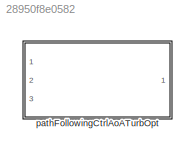
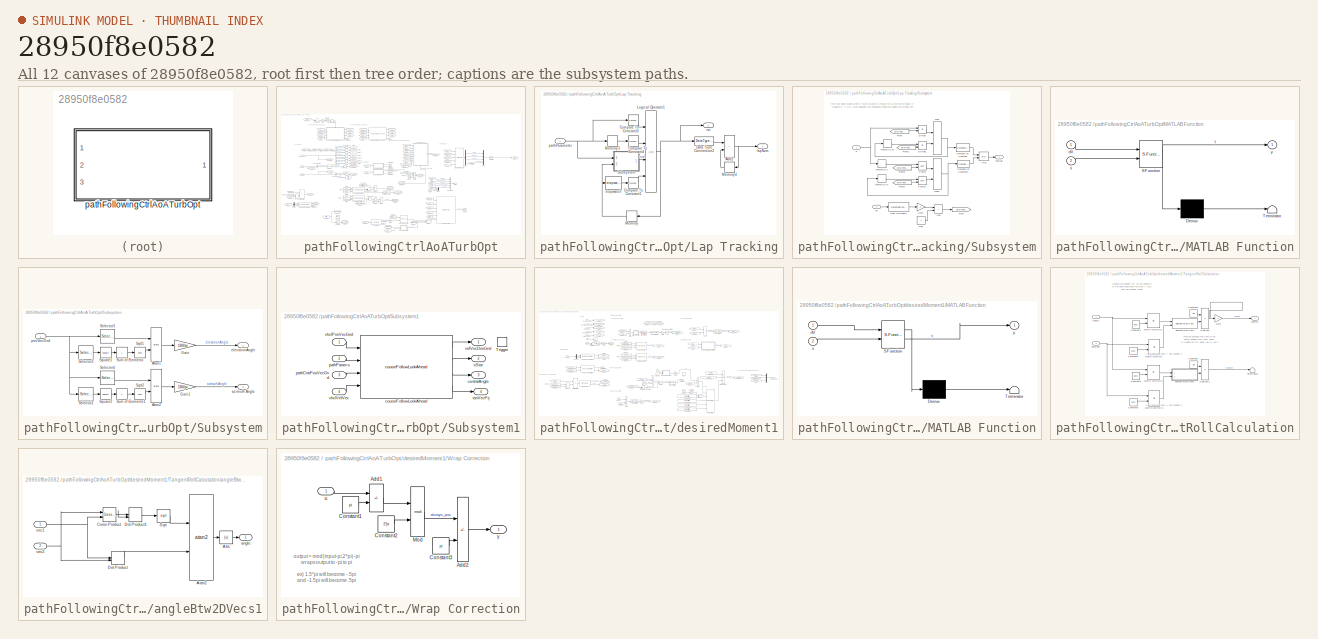
[diagram: thumbnail index - all 12 canvases of the model, root first then tree order]
MODEL slx_28950f8e0582
KIND library
CONFIG AbsTol = auto
CONFIG EnableMultiTasking = off
CONFIG FixedStep = auto
CONFIG MaxStep = auto
CONFIG MinStep = auto
CONFIG RelTol = 1e-3
CONFIG SampleTimeConstraint = Unconstrained
CONFIG SolverName = VariableStepAuto
CONFIG StartTime = 0.0
CONFIG StopTime = 10.0
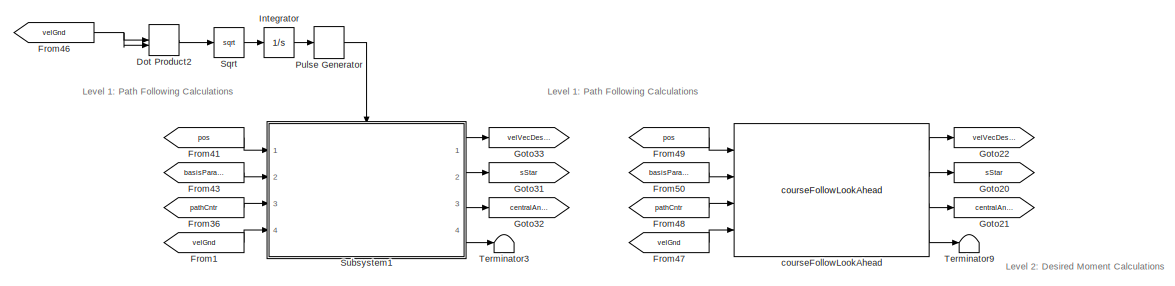
[diagram: pathFollowingCtrlAoATurbOpt - part 1/3, top left region]
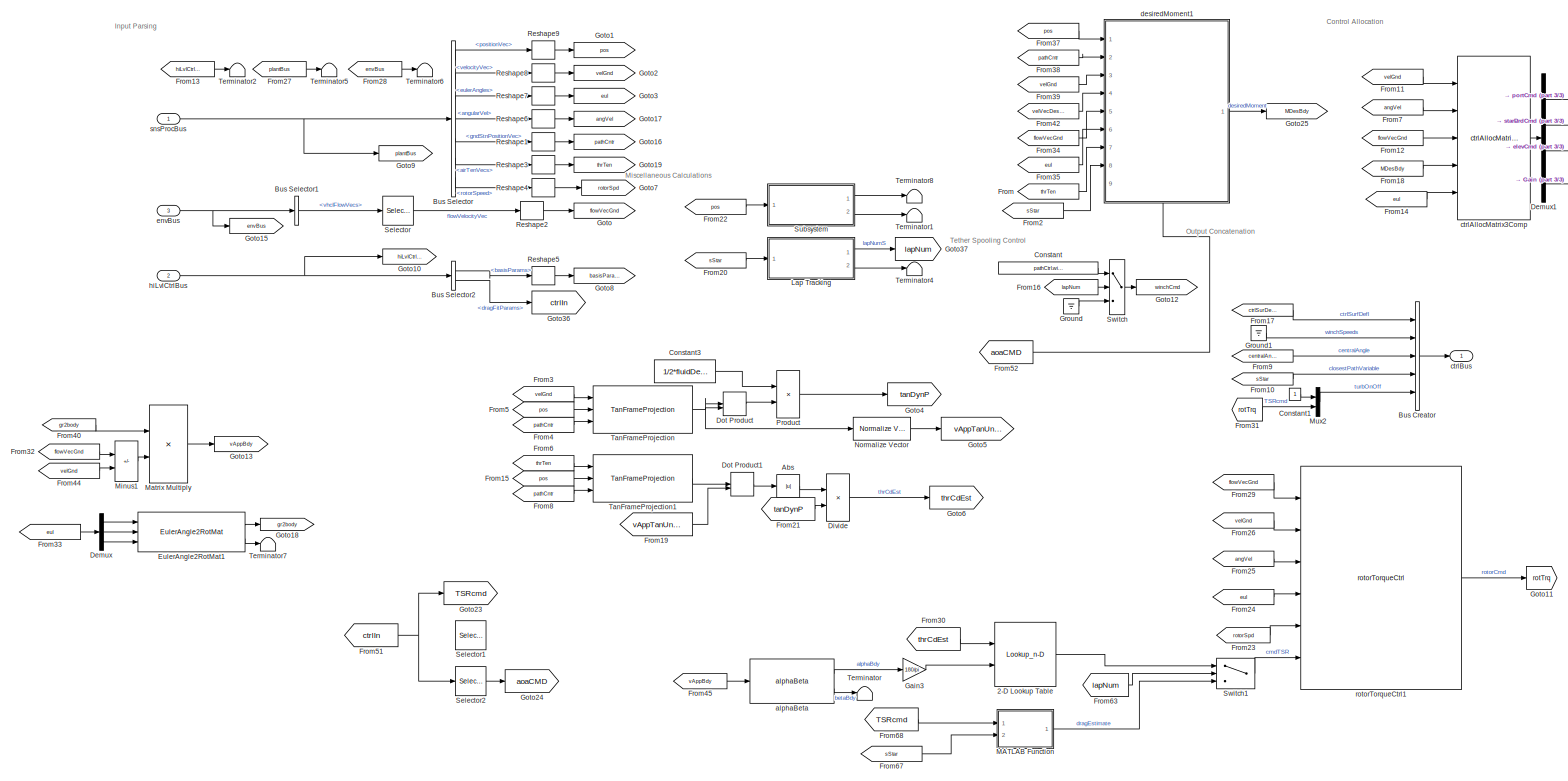
[diagram: pathFollowingCtrlAoATurbOpt - part 2/3, most of the canvas]
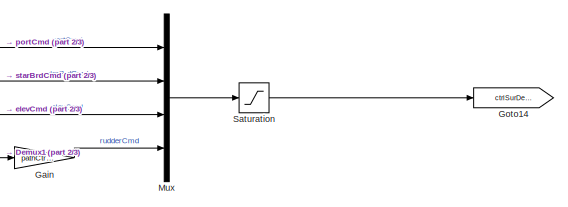
[diagram: pathFollowingCtrlAoATurbOpt - part 3/3, middle right region]
BLOCK [SubSystem] pathFollowingCtrlAoATurbOpt
  InitFcn = pathFollowingCtrlAoATurb_bc
  LoadFcn = pathFollowingCtrlAoATurb_bc
  MinAlgLoopOccurrences = on
  Ports = [3, 1]
  RequestExecContextInheritance = off
  StartFcn = pathFollowingCtrlAoATurb_bc
  VariantControl = strcmpi(FLIGHTCONTROLLER,'pathFollowingControllerManta')
BLOCK [Lookup_n-D] pathFollowingCtrlAoATurbOpt/2-D Lookup Table
  BreakpointsForDimension1 = thrCD
  BreakpointsForDimension2 = AoA
  InputPortMap = u0,u1
  InternalRulePriority = Speed
  Ports = [2, 1]
  RndMeth = Simplest
  Table = gammaDes
BLOCK [Abs] pathFollowingCtrlAoATurbOpt/Abs
  SaturateOnIntegerOverflow = off
BLOCK [BusCreator] pathFollowingCtrlAoATurbOpt/Bus Creator
  DisplayOption = bar
  InheritFromInputs = on
  Inputs = 5
  Ports = [5, 1]
BLOCK [BusSelector] pathFollowingCtrlAoATurbOpt/Bus Selector
  OutputSignals = positionVec,velocityVec,eulerAngles,angularVel,gndStnPositionVec,airTenVecs,rotorSpeed
  Ports = [1, 7]
BLOCK [BusSelector] pathFollowingCtrlAoATurbOpt/Bus Selector1
  OutputSignals = vhclFlowVecs
  Ports = [1, 1]
BLOCK [BusSelector] pathFollowingCtrlAoATurbOpt/Bus Selector2
  OutputSignals = basisParams,dragFitParams
  Ports = [1, 2]
BLOCK [Constant] pathFollowingCtrlAoATurbOpt/Constant
  Commented = on
  Value = pathCtrl.winchSpeedIn.Value
BLOCK [Constant] pathFollowingCtrlAoATurbOpt/Constant1
BLOCK [Constant] pathFollowingCtrlAoATurbOpt/Constant3
  Value = 1/2*fluidDensity*vhcl.fluidRefArea.Value
BLOCK [Demux] pathFollowingCtrlAoATurbOpt/Demux
  Outputs = 3
  Ports = [1, 3]
BLOCK [Demux] pathFollowingCtrlAoATurbOpt/Demux1
  Ports = [1, 4]
BLOCK [Product] pathFollowingCtrlAoATurbOpt/Divide
  Inputs = */
  Ports = [2, 1]
BLOCK [DotProduct] pathFollowingCtrlAoATurbOpt/Dot Product
  OutDataTypeStr = Inherit: Inherit via internal rule
BLOCK [DotProduct] pathFollowingCtrlAoATurbOpt/Dot Product1
  OutDataTypeStr = Inherit: Inherit via internal rule
BLOCK [DotProduct] pathFollowingCtrlAoATurbOpt/Dot Product2
  Commented = on
  OutDataTypeStr = Inherit: Inherit via internal rule
BLOCK [Reference] pathFollowingCtrlAoATurbOpt/EulerAngle2RotMat1  REF=eulAng2RotMat_ul/EulerAngle2RotMat
  Ports = [3, 2]
  SourceBlock = eulAng2RotMat_ul/EulerAngle2RotMat
  SourceType = SubSystem
BLOCK [From] pathFollowingCtrlAoATurbOpt/From
  GotoTag = thrTen
BLOCK [From] pathFollowingCtrlAoATurbOpt/From1
  Commented = on
  GotoTag = velGnd
BLOCK [From] pathFollowingCtrlAoATurbOpt/From10
  GotoTag = sStar
BLOCK [From] pathFollowingCtrlAoATurbOpt/From11
  GotoTag = velGnd
BLOCK [From] pathFollowingCtrlAoATurbOpt/From12
  GotoTag = flowVecGnd
BLOCK [From] pathFollowingCtrlAoATurbOpt/From13
  GotoTag = hiLvlCtrlBus
BLOCK [From] pathFollowingCtrlAoATurbOpt/From14
  GotoTag = eul
BLOCK [From] pathFollowingCtrlAoATurbOpt/From15
  GotoTag = pos
BLOCK [From] pathFollowingCtrlAoATurbOpt/From16
  Commented = on
  GotoTag = lapNum
BLOCK [From] pathFollowingCtrlAoATurbOpt/From17
  GotoTag = ctrlSurDefl
BLOCK [From] pathFollowingCtrlAoATurbOpt/From18
  GotoTag = MDesBdy
BLOCK [From] pathFollowingCtrlAoATurbOpt/From19
  GotoTag = vAppTanUnit
BLOCK [From] pathFollowingCtrlAoATurbOpt/From2
  GotoTag = sStar
BLOCK [From] pathFollowingCtrlAoATurbOpt/From20
  GotoTag = sStar
BLOCK [From] pathFollowingCtrlAoATurbOpt/From21
  GotoTag = tanDynP
BLOCK [From] pathFollowingCtrlAoATurbOpt/From22
  GotoTag = pos
BLOCK [From] pathFollowingCtrlAoATurbOpt/From23
  GotoTag = rotorSpd
BLOCK [From] pathFollowingCtrlAoATurbOpt/From24
  GotoTag = eul
BLOCK [From] pathFollowingCtrlAoATurbOpt/From25
  GotoTag = angVel
BLOCK [From] pathFollowingCtrlAoATurbOpt/From26
  GotoTag = velGnd
BLOCK [From] pathFollowingCtrlAoATurbOpt/From27
  GotoTag = plantBus
BLOCK [From] pathFollowingCtrlAoATurbOpt/From28
  GotoTag = envBus
BLOCK [From] pathFollowingCtrlAoATurbOpt/From29
  GotoTag = flowVecGnd
BLOCK [From] pathFollowingCtrlAoATurbOpt/From3
  GotoTag = velGnd
BLOCK [From] pathFollowingCtrlAoATurbOpt/From30
  GotoTag = thrCdEst
BLOCK [From] pathFollowingCtrlAoATurbOpt/From31
  GotoTag = rotTrq
BLOCK [From] pathFollowingCtrlAoATurbOpt/From32
  GotoTag = flowVecGnd
BLOCK [From] pathFollowingCtrlAoATurbOpt/From33
  GotoTag = eul
BLOCK [From] pathFollowingCtrlAoATurbOpt/From34
  GotoTag = flowVecGnd
BLOCK [From] pathFollowingCtrlAoATurbOpt/From35
  GotoTag = eul
BLOCK [From] pathFollowingCtrlAoATurbOpt/From36
  Commented = on
  GotoTag = pathCntr
BLOCK [From] pathFollowingCtrlAoATurbOpt/From37
  GotoTag = pos
BLOCK [From] pathFollowingCtrlAoATurbOpt/From38
  GotoTag = pathCntr
BLOCK [From] pathFollowingCtrlAoATurbOpt/From39
  GotoTag = velGnd
BLOCK [From] pathFollowingCtrlAoATurbOpt/From4
  GotoTag = pathCntr
BLOCK [From] pathFollowingCtrlAoATurbOpt/From40
  GotoTag = gr2body
BLOCK [From] pathFollowingCtrlAoATurbOpt/From41
  Commented = on
  GotoTag = pos
BLOCK [From] pathFollowingCtrlAoATurbOpt/From42
  GotoTag = velVecDesGnd
BLOCK [From] pathFollowingCtrlAoATurbOpt/From43
  Commented = on
  GotoTag = basisParams
BLOCK [From] pathFollowingCtrlAoATurbOpt/From44
  GotoTag = velGnd
BLOCK [From] pathFollowingCtrlAoATurbOpt/From45
  GotoTag = vAppBdy
BLOCK [From] pathFollowingCtrlAoATurbOpt/From46
  Commented = on
  GotoTag = velGnd
BLOCK [From] pathFollowingCtrlAoATurbOpt/From47
  GotoTag = velGnd
BLOCK [From] pathFollowingCtrlAoATurbOpt/From48
  GotoTag = pathCntr
BLOCK [From] pathFollowingCtrlAoATurbOpt/From49
  GotoTag = pos
BLOCK [From] pathFollowingCtrlAoATurbOpt/From5
  GotoTag = pos
BLOCK [From] pathFollowingCtrlAoATurbOpt/From50
  GotoTag = basisParams
BLOCK [From] pathFollowingCtrlAoATurbOpt/From51
  GotoTag = ctrlIn
BLOCK [From] pathFollowingCtrlAoATurbOpt/From52
  GotoTag = aoaCMD
BLOCK [From] pathFollowingCtrlAoATurbOpt/From6
  GotoTag = thrTen
BLOCK [From] pathFollowingCtrlAoATurbOpt/From63
  GotoTag = lapNum
BLOCK [From] pathFollowingCtrlAoATurbOpt/From67
  GotoTag = sStar
BLOCK [From] pathFollowingCtrlAoATurbOpt/From68
  GotoTag = TSRcmd
BLOCK [From] pathFollowingCtrlAoATurbOpt/From7
  GotoTag = angVel
BLOCK [From] pathFollowingCtrlAoATurbOpt/From8
  GotoTag = pathCntr
BLOCK [From] pathFollowingCtrlAoATurbOpt/From9
  GotoTag = centralAngle
BLOCK [Gain] pathFollowingCtrlAoATurbOpt/Gain
  Gain = pathCtrl.rudderGain.Value
BLOCK [Gain] pathFollowingCtrlAoATurbOpt/Gain3
  Gain = 180/pi
BLOCK [Goto] pathFollowingCtrlAoATurbOpt/Goto
  GotoTag = flowVecGnd
BLOCK [Goto] pathFollowingCtrlAoATurbOpt/Goto1
  GotoTag = pos
BLOCK [Goto] pathFollowingCtrlAoATurbOpt/Goto10
  GotoTag = hiLvlCtrlBus
BLOCK [Goto] pathFollowingCtrlAoATurbOpt/Goto11
  GotoTag = rotTrq
BLOCK [Goto] pathFollowingCtrlAoATurbOpt/Goto12
  Commented = on
  GotoTag = winchCmd
BLOCK [Goto] pathFollowingCtrlAoATurbOpt/Goto13
  GotoTag = vAppBdy
BLOCK [Goto] pathFollowingCtrlAoATurbOpt/Goto14
  GotoTag = ctrlSurDefl
BLOCK [Goto] pathFollowingCtrlAoATurbOpt/Goto15
  GotoTag = envBus
BLOCK [Goto] pathFollowingCtrlAoATurbOpt/Goto16
  GotoTag = pathCntr
BLOCK [Goto] pathFollowingCtrlAoATurbOpt/Goto17
  GotoTag = angVel
BLOCK [Goto] pathFollowingCtrlAoATurbOpt/Goto18
  GotoTag = gr2body
BLOCK [Goto] pathFollowingCtrlAoATurbOpt/Goto19
  GotoTag = thrTen
BLOCK [Goto] pathFollowingCtrlAoATurbOpt/Goto2
  GotoTag = velGnd
BLOCK [Goto] pathFollowingCtrlAoATurbOpt/Goto20
  GotoTag = sStar
BLOCK [Goto] pathFollowingCtrlAoATurbOpt/Goto21
  GotoTag = centralAngle
BLOCK [Goto] pathFollowingCtrlAoATurbOpt/Goto22
  GotoTag = velVecDesGnd
BLOCK [Goto] pathFollowingCtrlAoATurbOpt/Goto23
  GotoTag = TSRcmd
BLOCK [Goto] pathFollowingCtrlAoATurbOpt/Goto24
  Commented = on
  GotoTag = aoaCMD
BLOCK [Goto] pathFollowingCtrlAoATurbOpt/Goto25
  GotoTag = MDesBdy
BLOCK [Goto] pathFollowingCtrlAoATurbOpt/Goto3
  GotoTag = eul
BLOCK [Goto] pathFollowingCtrlAoATurbOpt/Goto31
  Commented = on
  GotoTag = sStar
BLOCK [Goto] pathFollowingCtrlAoATurbOpt/Goto32
  Commented = on
  GotoTag = centralAngle
BLOCK [Goto] pathFollowingCtrlAoATurbOpt/Goto33
  Commented = on
  GotoTag = velVecDesGnd
BLOCK [Goto] pathFollowingCtrlAoATurbOpt/Goto36
  GotoTag = ctrlIn
BLOCK [Goto] pathFollowingCtrlAoATurbOpt/Goto37
  GotoTag = lapNum
BLOCK [Goto] pathFollowingCtrlAoATurbOpt/Goto4
  GotoTag = tanDynP
BLOCK [Goto] pathFollowingCtrlAoATurbOpt/Goto5
  GotoTag = vAppTanUnit
BLOCK [Goto] pathFollowingCtrlAoATurbOpt/Goto6
  GotoTag = thrCdEst
BLOCK [Goto] pathFollowingCtrlAoATurbOpt/Goto7
  GotoTag = rotorSpd
BLOCK [Goto] pathFollowingCtrlAoATurbOpt/Goto8
  GotoTag = basisParams
BLOCK [Goto] pathFollowingCtrlAoATurbOpt/Goto9
  GotoTag = plantBus
BLOCK [Ground] pathFollowingCtrlAoATurbOpt/Ground
  Commented = on
BLOCK [Ground] pathFollowingCtrlAoATurbOpt/Ground1
BLOCK [Integrator] pathFollowingCtrlAoATurbOpt/Integrator
  Commented = on
  Ports = [1, 1]
BLOCK [SubSystem] pathFollowingCtrlAoATurbOpt/Lap Tracking
  Ports = [1, 2]
  RequestExecContextInheritance = off
BLOCK [Sum] pathFollowingCtrlAoATurbOpt/Lap Tracking/Add2
  IconShape = rectangular
  Ports = [2, 1]
BLOCK [Reference] pathFollowingCtrlAoATurbOpt/Lap Tracking/Compare To Constant1  REF=simulink/Logic and Bit
Operations/Compare
To Constant
  Ports = [1, 1]
  SourceBlock = simulink/Logic and Bit\nOperations/Compare\nTo Constant
  SourceProductBaseCode = SL
  SourceType = Compare To Constant
BLOCK [Reference] pathFollowingCtrlAoATurbOpt/Lap Tracking/Compare To Constant3  REF=simulink/Logic and Bit
Operations/Compare
To Constant
  Ports = [1, 1]
  SourceBlock = simulink/Logic and Bit\nOperations/Compare\nTo Constant
  SourceProductBaseCode = SL
  SourceType = Compare To Constant
BLOCK [Reference] pathFollowingCtrlAoATurbOpt/Lap Tracking/Compare To Constant4  REF=simulink/Logic and Bit
Operations/Compare
To Constant
  Ports = [1, 1]
  SourceBlock = simulink/Logic and Bit\nOperations/Compare\nTo Constant
  SourceProductBaseCode = SL
  SourceType = Compare To Constant
BLOCK [DataTypeConversion] pathFollowingCtrlAoATurbOpt/Lap Tracking/Data Type Conversion2
  OutDataTypeStr = double
  RndMeth = Floor
  SaturateOnIntegerOverflow = off
BLOCK [Logic] pathFollowingCtrlAoATurbOpt/Lap Tracking/Logical Operator1
  AllPortsSameDT = off
  Inputs = 4
  OutDataTypeStr = boolean
  Ports = [4, 1]
BLOCK [Memory] pathFollowingCtrlAoATurbOpt/Lap Tracking/Memory
  InitialCondition = false
BLOCK [Memory] pathFollowingCtrlAoATurbOpt/Lap Tracking/Memory3
BLOCK [Memory] pathFollowingCtrlAoATurbOpt/Lap Tracking/Memory4
BLOCK [SubSystem] pathFollowingCtrlAoATurbOpt/Lap Tracking/Subsystem
  Ports = [2, 1]
  RequestExecContextInheritance = off
BLOCK [Logic] pathFollowingCtrlAoATurbOpt/Lap Tracking/Subsystem/AND
  AllPortsSameDT = off
  OutDataTypeStr = boolean
  Ports = [2, 1]
BLOCK [Sum] pathFollowingCtrlAoATurbOpt/Lap Tracking/Subsystem/Add
  IconShape = rectangular
  Ports = [2, 1]
BLOCK [DataTypeConversion] pathFollowingCtrlAoATurbOpt/Lap Tracking/Subsystem/Cast To Double
  OutDataTypeStr = double
  RndMeth = Floor
  SaturateOnIntegerOverflow = off
BLOCK [Reference] pathFollowingCtrlAoATurbOpt/Lap Tracking/Subsystem/Compare To Constant  REF=simulink/Logic and Bit
Operations/Compare
To Constant
  Ports = [1, 1]
  SourceBlock = simulink/Logic and Bit\nOperations/Compare\nTo Constant
  SourceProductBaseCode = SL
  SourceType = Compare To Constant
BLOCK [Reference] pathFollowingCtrlAoATurbOpt/Lap Tracking/Subsystem/Compare To Constant1  REF=simulink/Logic and Bit
Operations/Compare
To Constant
  Ports = [1, 1]
  SourceBlock = simulink/Logic and Bit\nOperations/Compare\nTo Constant
  SourceProductBaseCode = SL
  SourceType = Compare To Constant
BLOCK [Product] pathFollowingCtrlAoATurbOpt/Lap Tracking/Subsystem/Divide
  Inputs = **
  Ports = [2, 1]
BLOCK [Product] pathFollowingCtrlAoATurbOpt/Lap Tracking/Subsystem/Divide1
  Inputs = **
  Ports = [2, 1]
BLOCK [From] pathFollowingCtrlAoATurbOpt/Lap Tracking/Subsystem/From
  GotoTag = zeroIfReset
BLOCK [From] pathFollowingCtrlAoATurbOpt/Lap Tracking/Subsystem/From1
  GotoTag = zeroIfReset
BLOCK [From] pathFollowingCtrlAoATurbOpt/Lap Tracking/Subsystem/From2
  GotoTag = zeroIfReset
BLOCK [From] pathFollowingCtrlAoATurbOpt/Lap Tracking/Subsystem/From3
  GotoTag = zeroIfReset
BLOCK [Gain] pathFollowingCtrlAoATurbOpt/Lap Tracking/Subsystem/Gain
  Gain = -1
BLOCK [Goto] pathFollowingCtrlAoATurbOpt/Lap Tracking/Subsystem/Goto
  GotoTag = zeroIfReset
BLOCK [MinMax] pathFollowingCtrlAoATurbOpt/Lap Tracking/Subsystem/Max
  Function = max
  Inputs = 2
  Ports = [2, 1]
BLOCK [MinMax] pathFollowingCtrlAoATurbOpt/Lap Tracking/Subsystem/Max1
  Inputs = 2
  Ports = [2, 1]
BLOCK [Constant] pathFollowingCtrlAoATurbOpt/Lap Tracking/Subsystem/One
  OutDataTypeStr = Inherit: Inherit via back propagation
BLOCK [Math] pathFollowingCtrlAoATurbOpt/Lap Tracking/Subsystem/Power
  Operator = pow
  Ports = [2, 1]
BLOCK [Math] pathFollowingCtrlAoATurbOpt/Lap Tracking/Subsystem/Power1
  Operator = pow
  Ports = [2, 1]
BLOCK [Inport] pathFollowingCtrlAoATurbOpt/Lap Tracking/Subsystem/S
BLOCK [Memory] pathFollowingCtrlAoATurbOpt/Lap Tracking/Subsystem/memoryIC1
  InitialCondition = 1
BLOCK [Memory] pathFollowingCtrlAoATurbOpt/Lap Tracking/Subsystem/memoryIC=0
BLOCK [Memory] pathFollowingCtrlAoATurbOpt/Lap Tracking/Subsystem/memoryIC=1
  InitialCondition = 1
BLOCK [Outport] pathFollowingCtrlAoATurbOpt/Lap Tracking/Subsystem/realLap
BLOCK [Inport] pathFollowingCtrlAoATurbOpt/Lap Tracking/Subsystem/rst
  Port = 2
BLOCK [Outport] pathFollowingCtrlAoATurbOpt/Lap Tracking/lapNum
  VectorParamsAs1DForOutWhenUnconnected = off
BLOCK [Inport] pathFollowingCtrlAoATurbOpt/Lap Tracking/pathParameter
BLOCK [Outport] pathFollowingCtrlAoATurbOpt/Lap Tracking/rst
  Port = 2
  VectorParamsAs1DForOutWhenUnconnected = off
BLOCK [Reference] pathFollowingCtrlAoATurbOpt/Lap Tracking/stopwatch  REF=stopwatch_ul/stopwatch  (lib defined in slx_5231e8830116, slx_6b86a6863970)
  Ports = [1, 1]
  SourceBlock = stopwatch_ul/stopwatch
  SourceType = SubSystem
BLOCK [SubSystem] pathFollowingCtrlAoATurbOpt/MATLAB Function
  ErrorFcn = Stateflow.Translate.translate
  PermitHierarchicalResolution = ExplicitOnly
  Ports = [2, 1]
  RequestExecContextInheritance = off
  SFBlockType = MATLAB Function
  TreatAsAtomicUnit = on
BLOCK [Demux] pathFollowingCtrlAoATurbOpt/MATLAB Function/ Demux 
  Outputs = 1
  Ports = [1, 1]
BLOCK [S-Function] pathFollowingCtrlAoATurbOpt/MATLAB Function/ SFunction 
  EnableBusSupport = off
  FunctionName = sf_sfun
  PortCounts = [2 2]
  Ports = [2, 2]
  SFcnIsStateOwnerBlock = off
  SFunctionDeploymentMode = off
  Tag = Stateflow S-Function 2
BLOCK [Terminator] pathFollowingCtrlAoATurbOpt/MATLAB Function/ Terminator 
BLOCK [Inport] pathFollowingCtrlAoATurbOpt/MATLAB Function/dV
BLOCK [Inport] pathFollowingCtrlAoATurbOpt/MATLAB Function/s
  Port = 2
BLOCK [Outport] pathFollowingCtrlAoATurbOpt/MATLAB Function/y
BLOCK [Product] pathFollowingCtrlAoATurbOpt/Matrix Multiply
  Multiplication = Matrix(*)
  Ports = [2, 1]
BLOCK [Sum] pathFollowingCtrlAoATurbOpt/Minus1
  IconShape = rectangular
  Inputs = +-
  Ports = [2, 1]
BLOCK [Mux] pathFollowingCtrlAoATurbOpt/Mux
  DisplayOption = bar
  Ports = [4, 1]
BLOCK [Mux] pathFollowingCtrlAoATurbOpt/Mux2
  DisplayOption = bar
  Inputs = 2
  Ports = [2, 1]
BLOCK [Reference] pathFollowingCtrlAoATurbOpt/Normalize Vector  REF=vrlib/Utilities/Normalize Vector
  Ports = [1, 1]
  SourceBlock = vrlib/Utilities/Normalize Vector
  SourceProductBaseCode = SL
  SourceType = Normalize Vector
BLOCK [Product] pathFollowingCtrlAoATurbOpt/Product
  Ports = [2, 1]
BLOCK [DiscretePulseGenerator] pathFollowingCtrlAoATurbOpt/Pulse Generator
  Commented = on
  Period = .01
  Ports = [1, 1]
  PulseType = Time based
  PulseWidth = 5
  TimeSource = Use external signal
BLOCK [Reshape] pathFollowingCtrlAoATurbOpt/Reshape1
  OutputDimensionality = Column vector (2-D)
  Ports = [1, 1]
BLOCK [Reshape] pathFollowingCtrlAoATurbOpt/Reshape2
  OutputDimensionality = Column vector (2-D)
  Ports = [1, 1]
BLOCK [Reshape] pathFollowingCtrlAoATurbOpt/Reshape3
  OutputDimensionality = Column vector (2-D)
  Ports = [1, 1]
BLOCK [Reshape] pathFollowingCtrlAoATurbOpt/Reshape4
  OutputDimensionality = Column vector (2-D)
  Ports = [1, 1]
BLOCK [Reshape] pathFollowingCtrlAoATurbOpt/Reshape5
  OutputDimensionality = Column vector (2-D)
  Ports = [1, 1]
BLOCK [Reshape] pathFollowingCtrlAoATurbOpt/Reshape6
  OutputDimensionality = Column vector (2-D)
  Ports = [1, 1]
BLOCK [Reshape] pathFollowingCtrlAoATurbOpt/Reshape7
  OutputDimensionality = Column vector (2-D)
  Ports = [1, 1]
BLOCK [Reshape] pathFollowingCtrlAoATurbOpt/Reshape8
  OutputDimensionality = Column vector (2-D)
  Ports = [1, 1]
BLOCK [Reshape] pathFollowingCtrlAoATurbOpt/Reshape9
  OutputDimensionality = Column vector (2-D)
  Ports = [1, 1]
BLOCK [Saturate] pathFollowingCtrlAoATurbOpt/Saturation
  LowerLimit = -30
  UpperLimit = 30
BLOCK [Selector] pathFollowingCtrlAoATurbOpt/Selector
  IndexOptions = Select all,Index vector (dialog)
  Indices = [1 3],5
  InputPortWidth = 3
  NumberOfDimensions = 2
  OutputSizes = 1,1
  Ports = [1, 1]
BLOCK [Selector] pathFollowingCtrlAoATurbOpt/Selector1
  Commented = on
  IndexOptions = Index vector (dialog)
  Indices = 1:10
  InputPortWidth = 20
  OutputSizes = 1
  Ports = [1, 1]
BLOCK [Selector] pathFollowingCtrlAoATurbOpt/Selector2
  Commented = on
  IndexOptions = Index vector (dialog)
  Indices = 11:20
  InputPortWidth = 20
  OutputSizes = 1
  Ports = [1, 1]
BLOCK [Sqrt] pathFollowingCtrlAoATurbOpt/Sqrt
  Commented = on
BLOCK [SubSystem] pathFollowingCtrlAoATurbOpt/Subsystem
  Ports = [1, 2]
  RequestExecContextInheritance = off
BLOCK [Trigonometry] pathFollowingCtrlAoATurbOpt/Subsystem/Atan1
  Operator = atan2
  Ports = [2, 1]
BLOCK [Trigonometry] pathFollowingCtrlAoATurbOpt/Subsystem/Atan2
  Operator = atan2
  Ports = [2, 1]
BLOCK [Gain] pathFollowingCtrlAoATurbOpt/Subsystem/Gain
  Gain = 180/pi
BLOCK [Gain] pathFollowingCtrlAoATurbOpt/Subsystem/Gain1
  Gain = 180/pi
BLOCK [Selector] pathFollowingCtrlAoATurbOpt/Subsystem/Selector1
  IndexOptions = Index vector (dialog)
  Indices = 1
  InputPortWidth = 3
  OutputSizes = 1
  Ports = [1, 1]
BLOCK [Selector] pathFollowingCtrlAoATurbOpt/Subsystem/Selector2
  IndexOptions = Index vector (dialog)
  Indices = [1 2]
  InputPortWidth = 3
  OutputSizes = 1
  Ports = [1, 1]
BLOCK [Selector] pathFollowingCtrlAoATurbOpt/Subsystem/Selector3
  IndexOptions = Index vector (dialog)
  Indices = 3
  InputPortWidth = 3
  OutputSizes = 1
  Ports = [1, 1]
BLOCK [Selector] pathFollowingCtrlAoATurbOpt/Subsystem/Selector4
  IndexOptions = Index vector (dialog)
  Indices = 2
  InputPortWidth = 3
  OutputSizes = 1
  Ports = [1, 1]
BLOCK [Sqrt] pathFollowingCtrlAoATurbOpt/Subsystem/Sqrt1
BLOCK [Sqrt] pathFollowingCtrlAoATurbOpt/Subsystem/Sqrt2
BLOCK [Math] pathFollowingCtrlAoATurbOpt/Subsystem/Square1
  Operator = square
  Ports = [1, 1]
  SignedPower = on
BLOCK [Math] pathFollowingCtrlAoATurbOpt/Subsystem/Square2
  Operator = square
  Ports = [1, 1]
  SignedPower = on
BLOCK [Sum] pathFollowingCtrlAoATurbOpt/Subsystem/Sum of Elements
  IconShape = rectangular
  Inputs = +
  Ports = [1, 1]
BLOCK [Sum] pathFollowingCtrlAoATurbOpt/Subsystem/Sum of Elements1
  IconShape = rectangular
  Inputs = +
  Ports = [1, 1]
BLOCK [Outport] pathFollowingCtrlAoATurbOpt/Subsystem/azimuth Angle
  Port = 2
BLOCK [Outport] pathFollowingCtrlAoATurbOpt/Subsystem/elevationAngle
BLOCK [Inport] pathFollowingCtrlAoATurbOpt/Subsystem/posVecGnd
BLOCK [SubSystem] pathFollowingCtrlAoATurbOpt/Subsystem1
  Commented = on
  Ports = [4, 4, 0, 1]
  RequestExecContextInheritance = off
BLOCK [TriggerPort] pathFollowingCtrlAoATurbOpt/Subsystem1/Trigger
  PortDimensions = 1
  Ports = []
  StatesWhenEnabling = held
  VariantControl = (inherit)
BLOCK [Outport] pathFollowingCtrlAoATurbOpt/Subsystem1/centralAngle
  Port = 3
BLOCK [Reference] pathFollowingCtrlAoATurbOpt/Subsystem1/courseFollowLookAhead  REF=courseFollowLookAhead_cl/courseFollowLookAhead
  Ports = [4, 4]
  SourceBlock = courseFollowLookAhead_cl/courseFollowLookAhead
  SourceType = SubSystem
BLOCK [Inport] pathFollowingCtrlAoATurbOpt/Subsystem1/pathCntrPosVecGnd
  Port = 3
BLOCK [Inport] pathFollowingCtrlAoATurbOpt/Subsystem1/pathParams
  Port = 2
BLOCK [Outport] pathFollowingCtrlAoATurbOpt/Subsystem1/sStar
  Port = 2
BLOCK [Outport] pathFollowingCtrlAoATurbOpt/Subsystem1/tanVecPrj
  Port = 4
BLOCK [Outport] pathFollowingCtrlAoATurbOpt/Subsystem1/velVecDesGnd
BLOCK [Inport] pathFollowingCtrlAoATurbOpt/Subsystem1/vhclPosVecGnd 
BLOCK [Inport] pathFollowingCtrlAoATurbOpt/Subsystem1/vhclVelVec
  Port = 4
BLOCK [Switch] pathFollowingCtrlAoATurbOpt/Switch
  Commented = on
  InputSameDT = off
  SaturateOnIntegerOverflow = off
  Threshold = fltCtrl.firstSpoolLap.Value
BLOCK [Switch] pathFollowingCtrlAoATurbOpt/Switch1
  Criteria = u2 > Threshold
  InputSameDT = off
  SaturateOnIntegerOverflow = off
  Threshold = laps2opt
BLOCK [Reference] pathFollowingCtrlAoATurbOpt/TanFrameProjection  REF=tanFrameProjection_ul/TanFrameProjection
  Ports = [3, 1]
  SourceBlock = tanFrameProjection_ul/TanFrameProjection
  SourceType = SubSystem
BLOCK [Reference] pathFollowingCtrlAoATurbOpt/TanFrameProjection1  REF=tanFrameProjection_ul/TanFrameProjection
  Ports = [3, 1]
  SourceBlock = tanFrameProjection_ul/TanFrameProjection
  SourceType = SubSystem
BLOCK [Terminator] pathFollowingCtrlAoATurbOpt/Terminator
BLOCK [Terminator] pathFollowingCtrlAoATurbOpt/Terminator1
BLOCK [Terminator] pathFollowingCtrlAoATurbOpt/Terminator2
BLOCK [Terminator] pathFollowingCtrlAoATurbOpt/Terminator3
  Commented = on
BLOCK [Terminator] pathFollowingCtrlAoATurbOpt/Terminator4
BLOCK [Terminator] pathFollowingCtrlAoATurbOpt/Terminator5
BLOCK [Terminator] pathFollowingCtrlAoATurbOpt/Terminator6
BLOCK [Terminator] pathFollowingCtrlAoATurbOpt/Terminator7
BLOCK [Terminator] pathFollowingCtrlAoATurbOpt/Terminator8
BLOCK [Terminator] pathFollowingCtrlAoATurbOpt/Terminator9
BLOCK [Reference] pathFollowingCtrlAoATurbOpt/alphaBeta  REF=alphaBeta_ul/alphaBeta
  Ports = [1, 2]
  SourceBlock = alphaBeta_ul/alphaBeta
  SourceType = SubSystem
BLOCK [Reference] pathFollowingCtrlAoATurbOpt/courseFollowLookAhead  REF=courseFollowLookAhead_cl/courseFollowLookAhead
  Ports = [4, 4]
  SourceBlock = courseFollowLookAhead_cl/courseFollowLookAhead
  SourceType = SubSystem
BLOCK [Reference] pathFollowingCtrlAoATurbOpt/ctrlAllocMatrix3Comp  REF=ctrlAllocMatrix3Comp_cl/ctrlAllocMatrix3Comp
  Ports = [5, 1]
  SourceBlock = ctrlAllocMatrix3Comp_cl/ctrlAllocMatrix3Comp
BLOCK [Outport] pathFollowingCtrlAoATurbOpt/ctrlBus
  OutDataTypeStr = Bus: fltCtrlBus
  VectorParamsAs1DForOutWhenUnconnected = off
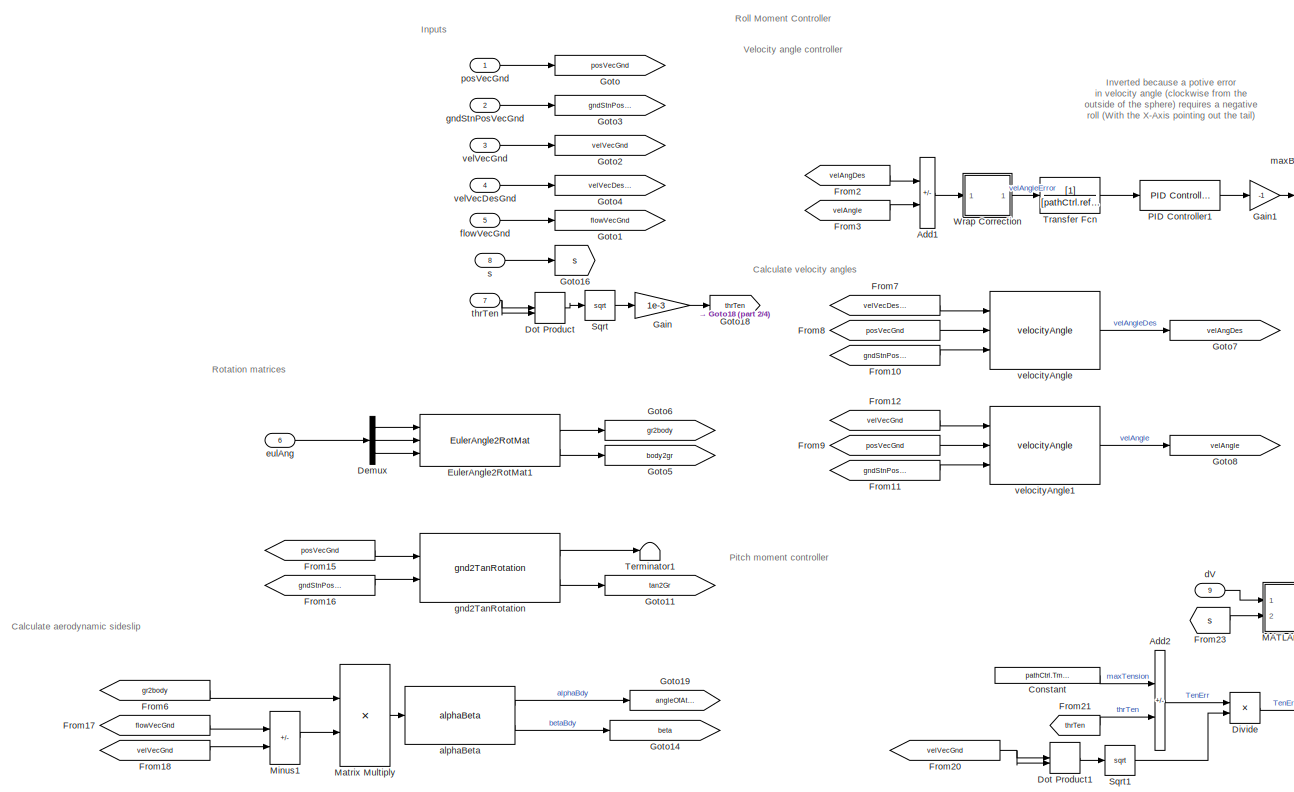
[diagram: pathFollowingCtrlAoATurbOpt/desiredMoment1 - part 1/4, left side, full height]
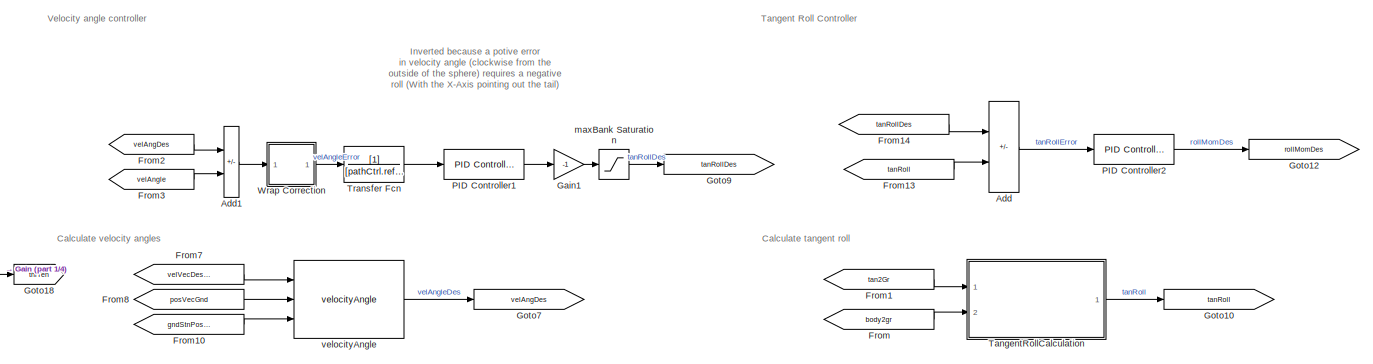
[diagram: pathFollowingCtrlAoATurbOpt/desiredMoment1 - part 2/4, top center region]
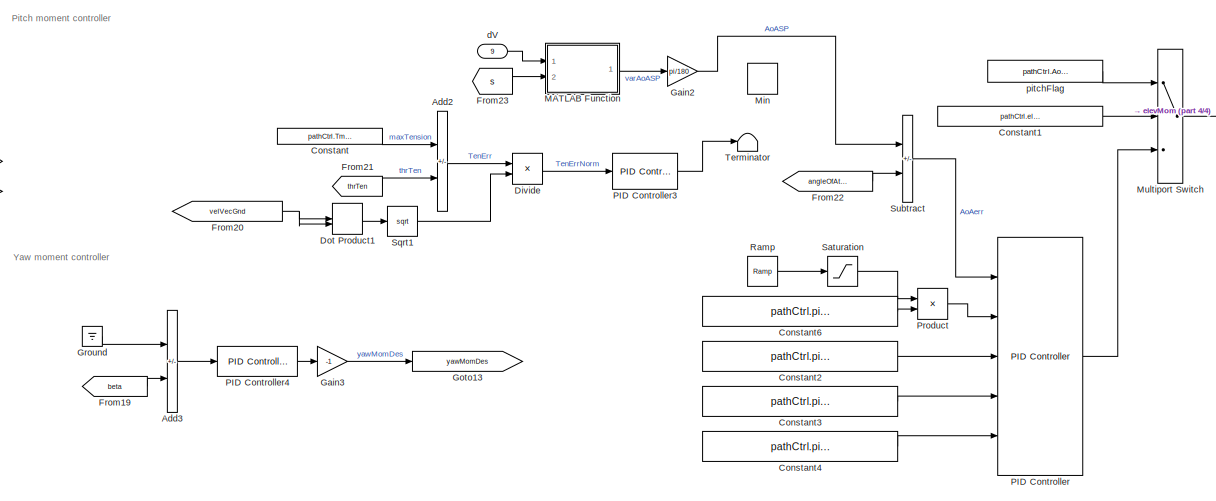
[diagram: pathFollowingCtrlAoATurbOpt/desiredMoment1 - part 3/4, bottom center region]
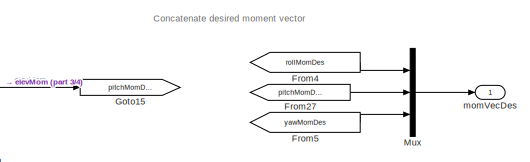
[diagram: pathFollowingCtrlAoATurbOpt/desiredMoment1 - part 4/4, middle right region]
BLOCK [SubSystem] pathFollowingCtrlAoATurbOpt/desiredMoment1
  PortSchema = {"entries":[{"content":{"sides":[{"content":{"connectorIds":["In1","In2","In3","In4","In5","In6","In7","In8"]},"type":"ConnectorPlacement.EquallySpacedRectSide","uuid":"01e16d0d-9328-4b4e-ac0f-d46a2051965f"},{"content":{"connectorIds":["Out1"],"side":"RIGHT"},"type":"ConnectorPlacement.EquallySpacedRectSide","uuid":"feeac069-ce6b-41d4-8056-59f0ed59b0cf"},{"content":{"connectorIds":[],"side":"TOP"}...<+431ch>
  Ports = [9, 1]
  RequestExecContextInheritance = off
BLOCK [Sum] pathFollowingCtrlAoATurbOpt/desiredMoment1/Add
  IconShape = rectangular
  Inputs = +-
  Ports = [2, 1]
BLOCK [Sum] pathFollowingCtrlAoATurbOpt/desiredMoment1/Add1
  IconShape = rectangular
  Inputs = +-
  Ports = [2, 1]
BLOCK [Sum] pathFollowingCtrlAoATurbOpt/desiredMoment1/Add2
  IconShape = rectangular
  Inputs = +-
  Ports = [2, 1]
BLOCK [Sum] pathFollowingCtrlAoATurbOpt/desiredMoment1/Add3
  IconShape = rectangular
  Inputs = +-
  Ports = [2, 1]
BLOCK [Constant] pathFollowingCtrlAoATurbOpt/desiredMoment1/Constant
  Value = pathCtrl.Tmax.Value
BLOCK [Constant] pathFollowingCtrlAoATurbOpt/desiredMoment1/Constant1
  Value = pathCtrl.elevatorConst.Value
BLOCK [Constant] pathFollowingCtrlAoATurbOpt/desiredMoment1/Constant2
  Value = pathCtrl.pitchMoment.ki.Value
BLOCK [Constant] pathFollowingCtrlAoATurbOpt/desiredMoment1/Constant3
  Value = pathCtrl.pitchMoment.kd.Value
BLOCK [Constant] pathFollowingCtrlAoATurbOpt/desiredMoment1/Constant4
  Value = pathCtrl.pitchMoment.tau.Value
BLOCK [Constant] pathFollowingCtrlAoATurbOpt/desiredMoment1/Constant6
  Value = pathCtrl.pitchMoment.kp.Value
BLOCK [Demux] pathFollowingCtrlAoATurbOpt/desiredMoment1/Demux
  Outputs = 3
  Ports = [1, 3]
BLOCK [Product] pathFollowingCtrlAoATurbOpt/desiredMoment1/Divide
  Inputs = */
  Ports = [2, 1]
BLOCK [DotProduct] pathFollowingCtrlAoATurbOpt/desiredMoment1/Dot Product
  OutDataTypeStr = Inherit: Inherit via internal rule
BLOCK [DotProduct] pathFollowingCtrlAoATurbOpt/desiredMoment1/Dot Product1
  OutDataTypeStr = Inherit: Inherit via internal rule
BLOCK [Reference] pathFollowingCtrlAoATurbOpt/desiredMoment1/EulerAngle2RotMat1  REF=eulAng2RotMat_ul/EulerAngle2RotMat
  Ports = [3, 2]
  SourceBlock = eulAng2RotMat_ul/EulerAngle2RotMat
  SourceType = SubSystem
BLOCK [From] pathFollowingCtrlAoATurbOpt/desiredMoment1/From
  GotoTag = body2gr
BLOCK [From] pathFollowingCtrlAoATurbOpt/desiredMoment1/From1
  GotoTag = tan2Gr
BLOCK [From] pathFollowingCtrlAoATurbOpt/desiredMoment1/From10
  GotoTag = gndStnPosVecGnd
BLOCK [From] pathFollowingCtrlAoATurbOpt/desiredMoment1/From11
  GotoTag = gndStnPosVecGnd
BLOCK [From] pathFollowingCtrlAoATurbOpt/desiredMoment1/From12
  GotoTag = velVecGnd
BLOCK [From] pathFollowingCtrlAoATurbOpt/desiredMoment1/From13
  GotoTag = tanRoll
BLOCK [From] pathFollowingCtrlAoATurbOpt/desiredMoment1/From14
  GotoTag = tanRollDes
BLOCK [From] pathFollowingCtrlAoATurbOpt/desiredMoment1/From15
  GotoTag = posVecGnd
BLOCK [From] pathFollowingCtrlAoATurbOpt/desiredMoment1/From16
  GotoTag = gndStnPosVecGnd
BLOCK [From] pathFollowingCtrlAoATurbOpt/desiredMoment1/From17
  GotoTag = flowVecGnd
BLOCK [From] pathFollowingCtrlAoATurbOpt/desiredMoment1/From18
  GotoTag = velVecGnd
BLOCK [From] pathFollowingCtrlAoATurbOpt/desiredMoment1/From19
  GotoTag = beta
BLOCK [From] pathFollowingCtrlAoATurbOpt/desiredMoment1/From2
  GotoTag = velAngDes
BLOCK [From] pathFollowingCtrlAoATurbOpt/desiredMoment1/From20
  GotoTag = velVecGnd
BLOCK [From] pathFollowingCtrlAoATurbOpt/desiredMoment1/From21
  GotoTag = thrTen
BLOCK [From] pathFollowingCtrlAoATurbOpt/desiredMoment1/From22
  GotoTag = angleOfAttack
BLOCK [From] pathFollowingCtrlAoATurbOpt/desiredMoment1/From23
  GotoTag = s
BLOCK [From] pathFollowingCtrlAoATurbOpt/desiredMoment1/From27
  GotoTag = pitchMomDes
BLOCK [From] pathFollowingCtrlAoATurbOpt/desiredMoment1/From3
  GotoTag = velAngle
BLOCK [From] pathFollowingCtrlAoATurbOpt/desiredMoment1/From4
  GotoTag = rollMomDes
BLOCK [From] pathFollowingCtrlAoATurbOpt/desiredMoment1/From5
  GotoTag = yawMomDes
BLOCK [From] pathFollowingCtrlAoATurbOpt/desiredMoment1/From6
  GotoTag = gr2body
BLOCK [From] pathFollowingCtrlAoATurbOpt/desiredMoment1/From7
  GotoTag = velVecDesGnd
BLOCK [From] pathFollowingCtrlAoATurbOpt/desiredMoment1/From8
  GotoTag = posVecGnd
BLOCK [From] pathFollowingCtrlAoATurbOpt/desiredMoment1/From9
  GotoTag = posVecGnd
BLOCK [Gain] pathFollowingCtrlAoATurbOpt/desiredMoment1/Gain
  Gain = 1e-3
BLOCK [Gain] pathFollowingCtrlAoATurbOpt/desiredMoment1/Gain1
  Gain = -1
BLOCK [Gain] pathFollowingCtrlAoATurbOpt/desiredMoment1/Gain2
  Gain = pi/180
BLOCK [Gain] pathFollowingCtrlAoATurbOpt/desiredMoment1/Gain3
  Gain = -1
BLOCK [Goto] pathFollowingCtrlAoATurbOpt/desiredMoment1/Goto
  GotoTag = posVecGnd
BLOCK [Goto] pathFollowingCtrlAoATurbOpt/desiredMoment1/Goto1
  GotoTag = flowVecGnd
BLOCK [Goto] pathFollowingCtrlAoATurbOpt/desiredMoment1/Goto10
  GotoTag = tanRoll
BLOCK [Goto] pathFollowingCtrlAoATurbOpt/desiredMoment1/Goto11
  GotoTag = tan2Gr
BLOCK [Goto] pathFollowingCtrlAoATurbOpt/desiredMoment1/Goto12
  GotoTag = rollMomDes
BLOCK [Goto] pathFollowingCtrlAoATurbOpt/desiredMoment1/Goto13
  GotoTag = yawMomDes
BLOCK [Goto] pathFollowingCtrlAoATurbOpt/desiredMoment1/Goto14
  GotoTag = beta
BLOCK [Goto] pathFollowingCtrlAoATurbOpt/desiredMoment1/Goto15
  GotoTag = pitchMomDes
BLOCK [Goto] pathFollowingCtrlAoATurbOpt/desiredMoment1/Goto16
  GotoTag = s
BLOCK [Goto] pathFollowingCtrlAoATurbOpt/desiredMoment1/Goto18
  GotoTag = thrTen
BLOCK [Goto] pathFollowingCtrlAoATurbOpt/desiredMoment1/Goto19
  GotoTag = angleOfAttack
BLOCK [Goto] pathFollowingCtrlAoATurbOpt/desiredMoment1/Goto2
  GotoTag = velVecGnd
BLOCK [Goto] pathFollowingCtrlAoATurbOpt/desiredMoment1/Goto3
  GotoTag = gndStnPosVecGnd
BLOCK [Goto] pathFollowingCtrlAoATurbOpt/desiredMoment1/Goto4
  GotoTag = velVecDesGnd
BLOCK [Goto] pathFollowingCtrlAoATurbOpt/desiredMoment1/Goto5
  GotoTag = body2gr
BLOCK [Goto] pathFollowingCtrlAoATurbOpt/desiredMoment1/Goto6
  GotoTag = gr2body
BLOCK [Goto] pathFollowingCtrlAoATurbOpt/desiredMoment1/Goto7
  GotoTag = velAngDes
BLOCK [Goto] pathFollowingCtrlAoATurbOpt/desiredMoment1/Goto8
  GotoTag = velAngle
BLOCK [Goto] pathFollowingCtrlAoATurbOpt/desiredMoment1/Goto9
  GotoTag = tanRollDes
BLOCK [Ground] pathFollowingCtrlAoATurbOpt/desiredMoment1/Ground
BLOCK [SubSystem] pathFollowingCtrlAoATurbOpt/desiredMoment1/MATLAB Function
  ErrorFcn = Stateflow.Translate.translate
  PermitHierarchicalResolution = ExplicitOnly
  Ports = [2, 1]
  RequestExecContextInheritance = off
  SFBlockType = MATLAB Function
  TreatAsAtomicUnit = on
BLOCK [Demux] pathFollowingCtrlAoATurbOpt/desiredMoment1/MATLAB Function/ Demux 
  Outputs = 1
  Ports = [1, 1]
BLOCK [S-Function] pathFollowingCtrlAoATurbOpt/desiredMoment1/MATLAB Function/ SFunction 
  EnableBusSupport = off
  FunctionName = sf_sfun
  PortCounts = [2 2]
  Ports = [2, 2]
  SFcnIsStateOwnerBlock = off
  SFunctionDeploymentMode = off
  Tag = Stateflow S-Function 1
BLOCK [Terminator] pathFollowingCtrlAoATurbOpt/desiredMoment1/MATLAB Function/ Terminator 
BLOCK [Inport] pathFollowingCtrlAoATurbOpt/desiredMoment1/MATLAB Function/dV
BLOCK [Inport] pathFollowingCtrlAoATurbOpt/desiredMoment1/MATLAB Function/s
  Port = 2
BLOCK [Outport] pathFollowingCtrlAoATurbOpt/desiredMoment1/MATLAB Function/y
BLOCK [Product] pathFollowingCtrlAoATurbOpt/desiredMoment1/Matrix Multiply
  Multiplication = Matrix(*)
  Ports = [2, 1]
BLOCK [MinMax] pathFollowingCtrlAoATurbOpt/desiredMoment1/Min
  Commented = on
  Inputs = 2
  Ports = [2, 1]
BLOCK [Sum] pathFollowingCtrlAoATurbOpt/desiredMoment1/Minus1
  IconShape = rectangular
  Inputs = +-
  Ports = [2, 1]
BLOCK [MultiPortSwitch] pathFollowingCtrlAoATurbOpt/desiredMoment1/Multiport Switch
  DataPortIndices = {0,1}
  DataPortOrder = Specify indices
  InputSameDT = off
  Inputs = 2
  Ports = [3, 1]
  SaturateOnIntegerOverflow = off
BLOCK [Mux] pathFollowingCtrlAoATurbOpt/desiredMoment1/Mux
  DisplayOption = bar
  Inputs = 3
  Ports = [3, 1]
BLOCK [Reference] pathFollowingCtrlAoATurbOpt/desiredMoment1/PID Controller  REF=slpidlib/PID Controller
  Ports = [5, 1]
  SourceBlock = slpidlib/PID Controller
  SourceProductBaseCode = SL
  SourceType = PID 1dof
BLOCK [Reference] pathFollowingCtrlAoATurbOpt/desiredMoment1/PID Controller1  REF=slpidlib/PID Controller
  Ports = [1, 1]
  SourceBlock = slpidlib/PID Controller
  SourceProductBaseCode = SL
  SourceType = PID 1dof
BLOCK [Reference] pathFollowingCtrlAoATurbOpt/desiredMoment1/PID Controller2  REF=slpidlib/PID Controller
  Ports = [1, 1]
  SourceBlock = slpidlib/PID Controller
  SourceProductBaseCode = SL
  SourceType = PID 1dof
BLOCK [Reference] pathFollowingCtrlAoATurbOpt/desiredMoment1/PID Controller3  REF=slpidlib/PID Controller
  Ports = [1, 1]
  SourceBlock = slpidlib/PID Controller
  SourceProductBaseCode = SL
  SourceType = PID 1dof
BLOCK [Reference] pathFollowingCtrlAoATurbOpt/desiredMoment1/PID Controller4  REF=slpidlib/PID Controller
  Ports = [1, 1]
  SourceBlock = slpidlib/PID Controller
  SourceProductBaseCode = SL
  SourceType = PID 1dof
BLOCK [Product] pathFollowingCtrlAoATurbOpt/desiredMoment1/Product
  Ports = [2, 1]
BLOCK [Reference] pathFollowingCtrlAoATurbOpt/desiredMoment1/Ramp  REF=simulink/Sources/Ramp
  Ports = [0, 1]
  SourceBlock = simulink/Sources/Ramp
  SourceProductBaseCode = SL
  SourceType = Ramp
BLOCK [Saturate] pathFollowingCtrlAoATurbOpt/desiredMoment1/Saturation
  LowerLimit = 0.2
  UpperLimit = 1
BLOCK [Sqrt] pathFollowingCtrlAoATurbOpt/desiredMoment1/Sqrt
BLOCK [Sqrt] pathFollowingCtrlAoATurbOpt/desiredMoment1/Sqrt1
BLOCK [Sum] pathFollowingCtrlAoATurbOpt/desiredMoment1/Subtract
  IconShape = rectangular
  Inputs = +-
  Ports = [2, 1]
BLOCK [SubSystem] pathFollowingCtrlAoATurbOpt/desiredMoment1/TangentRollCalculation
  Ports = [2, 1]
  RequestExecContextInheritance = off
BLOCK [Constant] pathFollowingCtrlAoATurbOpt/desiredMoment1/TangentRollCalculation/Constant1
  Value = pi/2
BLOCK [Constant] pathFollowingCtrlAoATurbOpt/desiredMoment1/TangentRollCalculation/Constant2
  Value = pi/2
BLOCK [Constant] pathFollowingCtrlAoATurbOpt/desiredMoment1/TangentRollCalculation/Constant3
  Value = [0 1 0]'
BLOCK [Constant] pathFollowingCtrlAoATurbOpt/desiredMoment1/TangentRollCalculation/Constant4
  Value = [0 0 1]'
BLOCK [Constant] pathFollowingCtrlAoATurbOpt/desiredMoment1/TangentRollCalculation/Constant5
  Value = [1 0 0]'
BLOCK [Constant] pathFollowingCtrlAoATurbOpt/desiredMoment1/TangentRollCalculation/Constant6
  Value = [0 0 1]'
BLOCK [Gain] pathFollowingCtrlAoATurbOpt/desiredMoment1/TangentRollCalculation/Gain
  Gain = -1
BLOCK [Product] pathFollowingCtrlAoATurbOpt/desiredMoment1/TangentRollCalculation/Matrix Multiply
  Multiplication = Matrix(*)
  Ports = [2, 1]
BLOCK [Product] pathFollowingCtrlAoATurbOpt/desiredMoment1/TangentRollCalculation/Matrix Multiply1
  Multiplication = Matrix(*)
  Ports = [2, 1]
BLOCK [Product] pathFollowingCtrlAoATurbOpt/desiredMoment1/TangentRollCalculation/Matrix Multiply2
  Multiplication = Matrix(*)
  Ports = [2, 1]
BLOCK [Product] pathFollowingCtrlAoATurbOpt/desiredMoment1/TangentRollCalculation/Matrix Multiply3
  Multiplication = Matrix(*)
  Ports = [2, 1]
BLOCK [Sum] pathFollowingCtrlAoATurbOpt/desiredMoment1/TangentRollCalculation/Subtract
  IconShape = rectangular
  Inputs = +-
  Ports = [2, 1]
BLOCK [Sum] pathFollowingCtrlAoATurbOpt/desiredMoment1/TangentRollCalculation/Subtract1
  IconShape = rectangular
  Inputs = +-
  Ports = [2, 1]
BLOCK [Terminator] pathFollowingCtrlAoATurbOpt/desiredMoment1/TangentRollCalculation/Terminator
BLOCK [Reference] pathFollowingCtrlAoATurbOpt/desiredMoment1/TangentRollCalculation/angleBtw2DVecs  REF=angleBtw2Vecs_ul/angleBtw2DVecs
  Ports = [2, 1]
  SourceBlock = angleBtw2Vecs_ul/angleBtw2DVecs
  SourceType = SubSystem
BLOCK [SubSystem] pathFollowingCtrlAoATurbOpt/desiredMoment1/TangentRollCalculation/angleBtw2DVecs1
  Ports = [2, 1]
  RequestExecContextInheritance = off
BLOCK [Abs] pathFollowingCtrlAoATurbOpt/desiredMoment1/TangentRollCalculation/angleBtw2DVecs1/Abs
  SaturateOnIntegerOverflow = off
BLOCK [Trigonometry] pathFollowingCtrlAoATurbOpt/desiredMoment1/TangentRollCalculation/angleBtw2DVecs1/Atan2
  Operator = atan2
  Ports = [2, 1]
BLOCK [Reference] pathFollowingCtrlAoATurbOpt/desiredMoment1/TangentRollCalculation/angleBtw2DVecs1/Cross Product  REF=vrlib/Utilities/Cross Product
  Ports = [2, 1]
  SourceBlock = vrlib/Utilities/Cross Product
  SourceProductBaseCode = SL
  SourceType = Cross Product
BLOCK [DotProduct] pathFollowingCtrlAoATurbOpt/desiredMoment1/TangentRollCalculation/angleBtw2DVecs1/Dot Product
  OutDataTypeStr = Inherit: Inherit via internal rule
BLOCK [DotProduct] pathFollowingCtrlAoATurbOpt/desiredMoment1/TangentRollCalculation/angleBtw2DVecs1/Dot Product1
  OutDataTypeStr = Inherit: Inherit via internal rule
BLOCK [Sqrt] pathFollowingCtrlAoATurbOpt/desiredMoment1/TangentRollCalculation/angleBtw2DVecs1/Sqrt
BLOCK [Outport] pathFollowingCtrlAoATurbOpt/desiredMoment1/TangentRollCalculation/angleBtw2DVecs1/angle
  VectorParamsAs1DForOutWhenUnconnected = off
BLOCK [Inport] pathFollowingCtrlAoATurbOpt/desiredMoment1/TangentRollCalculation/angleBtw2DVecs1/vec1
BLOCK [Inport] pathFollowingCtrlAoATurbOpt/desiredMoment1/TangentRollCalculation/angleBtw2DVecs1/vec2
  Port = 2
BLOCK [Inport] pathFollowingCtrlAoATurbOpt/desiredMoment1/TangentRollCalculation/bdy2Inert
  Port = 2
BLOCK [Inport] pathFollowingCtrlAoATurbOpt/desiredMoment1/TangentRollCalculation/tan2Gr
BLOCK [Outport] pathFollowingCtrlAoATurbOpt/desiredMoment1/TangentRollCalculation/tanRoll
  VectorParamsAs1DForOutWhenUnconnected = off
BLOCK [Terminator] pathFollowingCtrlAoATurbOpt/desiredMoment1/Terminator
BLOCK [Terminator] pathFollowingCtrlAoATurbOpt/desiredMoment1/Terminator1
BLOCK [TransferFcn] pathFollowingCtrlAoATurbOpt/desiredMoment1/Transfer Fcn
  Denominator = [pathCtrl.refFiltTau.Value 1]
BLOCK [SubSystem] pathFollowingCtrlAoATurbOpt/desiredMoment1/Wrap Correction
  Ports = [1, 1]
  RequestExecContextInheritance = off
BLOCK [Sum] pathFollowingCtrlAoATurbOpt/desiredMoment1/Wrap Correction/Add1
  IconShape = rectangular
  Inputs = +-
  Ports = [2, 1]
BLOCK [Sum] pathFollowingCtrlAoATurbOpt/desiredMoment1/Wrap Correction/Add2
  IconShape = rectangular
  Inputs = +-
  Ports = [2, 1]
BLOCK [Constant] pathFollowingCtrlAoATurbOpt/desiredMoment1/Wrap Correction/Constant1
  Value = pi
BLOCK [Constant] pathFollowingCtrlAoATurbOpt/desiredMoment1/Wrap Correction/Constant2
  Value = 2*pi
BLOCK [Constant] pathFollowingCtrlAoATurbOpt/desiredMoment1/Wrap Correction/Constant3
  Value = pi
BLOCK [Math] pathFollowingCtrlAoATurbOpt/desiredMoment1/Wrap Correction/Mod
  Operator = mod
  Ports = [2, 1]
  SignedPower = on
BLOCK [Inport] pathFollowingCtrlAoATurbOpt/desiredMoment1/Wrap Correction/u
BLOCK [Outport] pathFollowingCtrlAoATurbOpt/desiredMoment1/Wrap Correction/y
  VectorParamsAs1DForOutWhenUnconnected = off
BLOCK [Reference] pathFollowingCtrlAoATurbOpt/desiredMoment1/alphaBeta  REF=alphaBeta_ul/alphaBeta
  Ports = [1, 2]
  SourceBlock = alphaBeta_ul/alphaBeta
  SourceType = SubSystem
BLOCK [Inport] pathFollowingCtrlAoATurbOpt/desiredMoment1/dV
  Port = 9
BLOCK [Inport] pathFollowingCtrlAoATurbOpt/desiredMoment1/eulAng
  Port = 6
BLOCK [Inport] pathFollowingCtrlAoATurbOpt/desiredMoment1/flowVecGnd
  Port = 5
BLOCK [Reference] pathFollowingCtrlAoATurbOpt/desiredMoment1/gnd2TanRotation  REF=gnd2TanRotation_ul/gnd2TanRotation
  Ports = [2, 2]
  SourceBlock = gnd2TanRotation_ul/gnd2TanRotation
  SourceType = SubSystem
BLOCK [Inport] pathFollowingCtrlAoATurbOpt/desiredMoment1/gndStnPosVecGnd
  Port = 2
BLOCK [Saturate] pathFollowingCtrlAoATurbOpt/desiredMoment1/maxBank Saturation
  LowerLimit = pathCtrl.maxBank.lowerLimit.Value
  UpperLimit = pathCtrl.maxBank.upperLimit.Value
BLOCK [Outport] pathFollowingCtrlAoATurbOpt/desiredMoment1/momVecDes
  VectorParamsAs1DForOutWhenUnconnected = off
BLOCK [Constant] pathFollowingCtrlAoATurbOpt/desiredMoment1/pitchFlag
  Value = pathCtrl.AoACtrl.Value
BLOCK [Inport] pathFollowingCtrlAoATurbOpt/desiredMoment1/posVecGnd
BLOCK [Inport] pathFollowingCtrlAoATurbOpt/desiredMoment1/s
  Port = 8
BLOCK [Inport] pathFollowingCtrlAoATurbOpt/desiredMoment1/thrTen
  Port = 7
BLOCK [Inport] pathFollowingCtrlAoATurbOpt/desiredMoment1/velVecDesGnd
  Port = 4
BLOCK [Inport] pathFollowingCtrlAoATurbOpt/desiredMoment1/velVecGnd
  Port = 3
BLOCK [Reference] pathFollowingCtrlAoATurbOpt/desiredMoment1/velocityAngle  REF=velocityAngle_ul/velocityAngle
  Ports = [3, 1]
  SourceBlock = velocityAngle_ul/velocityAngle
  SourceType = SubSystem
BLOCK [Reference] pathFollowingCtrlAoATurbOpt/desiredMoment1/velocityAngle1  REF=velocityAngle_ul/velocityAngle
  Ports = [3, 1]
  SourceBlock = velocityAngle_ul/velocityAngle
  SourceType = SubSystem
BLOCK [Inport] pathFollowingCtrlAoATurbOpt/envBus
  OutDataTypeStr = Bus: envBus
  Port = 3
BLOCK [Inport] pathFollowingCtrlAoATurbOpt/hiLvlCtrlBus
  OutDataTypeStr = Bus: hiLvlCtrlBus
  Port = 2
BLOCK [Reference] pathFollowingCtrlAoATurbOpt/rotorTorqueCtrl1  REF=rotorTorqueCtrlFeedBackLinearized/rotorTorqueCtrl
  Ports = [6, 1]
  SourceBlock = rotorTorqueCtrlFeedBackLinearized/rotorTorqueCtrl
BLOCK [Inport] pathFollowingCtrlAoATurbOpt/snsProcBus
  OutDataTypeStr = Bus: sensorsProcessingBus
ANNOTATION pathFollowingCtrlAoATurbOpt: Control Allocation
ANNOTATION pathFollowingCtrlAoATurbOpt: Input Parsing
ANNOTATION pathFollowingCtrlAoATurbOpt: Level 1: Path Following Calculations
ANNOTATION pathFollowingCtrlAoATurbOpt: Level 2: Desired Moment Calculations
ANNOTATION pathFollowingCtrlAoATurbOpt: Miscellaneous Calculations
ANNOTATION pathFollowingCtrlAoATurbOpt: Output Concatenation
ANNOTATION pathFollowingCtrlAoATurbOpt: Tether Spooling Control
ANNOTATION pathFollowingCtrlAoATurbOpt/Lap Tracking/Subsystem: this may have issues when it starts up after a hiatus for a multicycle spool in Hopefully, it will work because the reasonable spooling ranges are already set
ANNOTATION pathFollowingCtrlAoATurbOpt/desiredMoment1: Calculate aerodynamic sideslip
ANNOTATION pathFollowingCtrlAoATurbOpt/desiredMoment1: Calculate tangent roll
ANNOTATION pathFollowingCtrlAoATurbOpt/desiredMoment1: Calculate velocity angles
ANNOTATION pathFollowingCtrlAoATurbOpt/desiredMoment1: Concatenate desired moment vector
ANNOTATION pathFollowingCtrlAoATurbOpt/desiredMoment1: Inputs
ANNOTATION pathFollowingCtrlAoATurbOpt/desiredMoment1: Inverted because a potive error in velocity angle (clockwise from the outside of the sphere) requires a negative roll (With the X-Axis pointing out the tail)
ANNOTATION pathFollowingCtrlAoATurbOpt/desiredMoment1: Pitch moment controller
ANNOTATION pathFollowingCtrlAoATurbOpt/desiredMoment1: Roll Moment Controller
ANNOTATION pathFollowingCtrlAoATurbOpt/desiredMoment1: Rotation matrices
ANNOTATION pathFollowingCtrlAoATurbOpt/desiredMoment1: Tangent Roll Controller
ANNOTATION pathFollowingCtrlAoATurbOpt/desiredMoment1: Velocity angle controller
ANNOTATION pathFollowingCtrlAoATurbOpt/desiredMoment1: Yaw moment controller
ANNOTATION pathFollowingCtrlAoATurbOpt/desiredMoment1/TangentRollCalculation: Measuring tangent roll as the opposite of the angle between the Body Y axis and the tangent plane
ANNOTATION pathFollowingCtrlAoATurbOpt/desiredMoment1/TangentRollCalculation: Angle between body X and tangent Z
ANNOTATION pathFollowingCtrlAoATurbOpt/desiredMoment1/TangentRollCalculation: Angle between body Y and tangent Z
ANNOTATION pathFollowingCtrlAoATurbOpt/desiredMoment1/TangentRollCalculation: Inverted because the right wing being <90deg from Local down is a negative roll about the +X axis
ANNOTATION pathFollowingCtrlAoATurbOpt/desiredMoment1/Wrap Correction: output = mod(input-pi,2*pi)-pi wraps output to -pi to pi ex) 1.5*pi will become -.5pi and -1.5pi will become .5pi to visualize, plot the fuction above
LINE pathFollowingCtrlAoATurbOpt/2-D Lookup Table:1 -> pathFollowingCtrlAoATurbOpt/Switch1:1
LINE pathFollowingCtrlAoATurbOpt/Abs:1 -> pathFollowingCtrlAoATurbOpt/Divide:1
LINE pathFollowingCtrlAoATurbOpt/Bus Creator:1 -> pathFollowingCtrlAoATurbOpt/ctrlBus:1
LINE pathFollowingCtrlAoATurbOpt/Bus Selector1:1 -> pathFollowingCtrlAoATurbOpt/Selector:1
LINE pathFollowingCtrlAoATurbOpt/Bus Selector2:1 -> pathFollowingCtrlAoATurbOpt/Reshape5:1
LINE pathFollowingCtrlAoATurbOpt/Bus Selector2:2 -> pathFollowingCtrlAoATurbOpt/Goto36:1
LINE pathFollowingCtrlAoATurbOpt/Bus Selector:1 -> pathFollowingCtrlAoATurbOpt/Reshape9:1
LINE pathFollowingCtrlAoATurbOpt/Bus Selector:2 -> pathFollowingCtrlAoATurbOpt/Reshape8:1
LINE pathFollowingCtrlAoATurbOpt/Bus Selector:3 -> pathFollowingCtrlAoATurbOpt/Reshape7:1
LINE pathFollowingCtrlAoATurbOpt/Bus Selector:4 -> pathFollowingCtrlAoATurbOpt/Reshape6:1
LINE pathFollowingCtrlAoATurbOpt/Bus Selector:5 -> pathFollowingCtrlAoATurbOpt/Reshape1:1
LINE pathFollowingCtrlAoATurbOpt/Bus Selector:6 -> pathFollowingCtrlAoATurbOpt/Reshape3:1
LINE pathFollowingCtrlAoATurbOpt/Bus Selector:7 -> pathFollowingCtrlAoATurbOpt/Reshape4:1
LINE pathFollowingCtrlAoATurbOpt/Constant1:1 -> pathFollowingCtrlAoATurbOpt/Mux2:1
LINE pathFollowingCtrlAoATurbOpt/Constant3:1 -> pathFollowingCtrlAoATurbOpt/Product:1
LINE pathFollowingCtrlAoATurbOpt/Constant:1 -> pathFollowingCtrlAoATurbOpt/Switch:1
LINE pathFollowingCtrlAoATurbOpt/Demux1:1 -> pathFollowingCtrlAoATurbOpt/Mux:1
LINE pathFollowingCtrlAoATurbOpt/Demux1:2 -> pathFollowingCtrlAoATurbOpt/Mux:2
LINE pathFollowingCtrlAoATurbOpt/Demux1:3 -> pathFollowingCtrlAoATurbOpt/Mux:3
LINE pathFollowingCtrlAoATurbOpt/Demux1:4 -> pathFollowingCtrlAoATurbOpt/Gain:1
LINE pathFollowingCtrlAoATurbOpt/Demux:1 -> pathFollowingCtrlAoATurbOpt/EulerAngle2RotMat1:1
LINE pathFollowingCtrlAoATurbOpt/Demux:2 -> pathFollowingCtrlAoATurbOpt/EulerAngle2RotMat1:2
LINE pathFollowingCtrlAoATurbOpt/Demux:3 -> pathFollowingCtrlAoATurbOpt/EulerAngle2RotMat1:3
LINE pathFollowingCtrlAoATurbOpt/Divide:1 -> pathFollowingCtrlAoATurbOpt/Goto6:1
LINE pathFollowingCtrlAoATurbOpt/Dot Product1:1 -> pathFollowingCtrlAoATurbOpt/Abs:1
LINE pathFollowingCtrlAoATurbOpt/Dot Product2:1 -> pathFollowingCtrlAoATurbOpt/Sqrt:1
LINE pathFollowingCtrlAoATurbOpt/Dot Product:1 -> pathFollowingCtrlAoATurbOpt/Product:2
LINE pathFollowingCtrlAoATurbOpt/EulerAngle2RotMat1:1 -> pathFollowingCtrlAoATurbOpt/Goto18:1
LINE pathFollowingCtrlAoATurbOpt/EulerAngle2RotMat1:2 -> pathFollowingCtrlAoATurbOpt/Terminator7:1
LINE pathFollowingCtrlAoATurbOpt/From10:1 -> pathFollowingCtrlAoATurbOpt/Bus Creator:4
LINE pathFollowingCtrlAoATurbOpt/From11:1 -> pathFollowingCtrlAoATurbOpt/ctrlAllocMatrix3Comp:1
LINE pathFollowingCtrlAoATurbOpt/From12:1 -> pathFollowingCtrlAoATurbOpt/ctrlAllocMatrix3Comp:3
LINE pathFollowingCtrlAoATurbOpt/From13:1 -> pathFollowingCtrlAoATurbOpt/Terminator2:1
LINE pathFollowingCtrlAoATurbOpt/From14:1 -> pathFollowingCtrlAoATurbOpt/ctrlAllocMatrix3Comp:5
LINE pathFollowingCtrlAoATurbOpt/From15:1 -> pathFollowingCtrlAoATurbOpt/TanFrameProjection1:2
LINE pathFollowingCtrlAoATurbOpt/From16:1 -> pathFollowingCtrlAoATurbOpt/Switch:2
LINE pathFollowingCtrlAoATurbOpt/From17:1 -> pathFollowingCtrlAoATurbOpt/Bus Creator:1
LINE pathFollowingCtrlAoATurbOpt/From18:1 -> pathFollowingCtrlAoATurbOpt/ctrlAllocMatrix3Comp:4
LINE pathFollowingCtrlAoATurbOpt/From19:1 -> pathFollowingCtrlAoATurbOpt/Dot Product1:2
LINE pathFollowingCtrlAoATurbOpt/From1:1 -> pathFollowingCtrlAoATurbOpt/Subsystem1:4
LINE pathFollowingCtrlAoATurbOpt/From20:1 -> pathFollowingCtrlAoATurbOpt/Lap Tracking:1
LINE pathFollowingCtrlAoATurbOpt/From21:1 -> pathFollowingCtrlAoATurbOpt/Divide:2
LINE pathFollowingCtrlAoATurbOpt/From22:1 -> pathFollowingCtrlAoATurbOpt/Subsystem:1
LINE pathFollowingCtrlAoATurbOpt/From23:1 -> pathFollowingCtrlAoATurbOpt/rotorTorqueCtrl1:5
LINE pathFollowingCtrlAoATurbOpt/From24:1 -> pathFollowingCtrlAoATurbOpt/rotorTorqueCtrl1:4
LINE pathFollowingCtrlAoATurbOpt/From25:1 -> pathFollowingCtrlAoATurbOpt/rotorTorqueCtrl1:3
LINE pathFollowingCtrlAoATurbOpt/From26:1 -> pathFollowingCtrlAoATurbOpt/rotorTorqueCtrl1:2
LINE pathFollowingCtrlAoATurbOpt/From27:1 -> pathFollowingCtrlAoATurbOpt/Terminator5:1
LINE pathFollowingCtrlAoATurbOpt/From28:1 -> pathFollowingCtrlAoATurbOpt/Terminator6:1
LINE pathFollowingCtrlAoATurbOpt/From29:1 -> pathFollowingCtrlAoATurbOpt/rotorTorqueCtrl1:1
LINE pathFollowingCtrlAoATurbOpt/From2:1 -> pathFollowingCtrlAoATurbOpt/desiredMoment1:8
LINE pathFollowingCtrlAoATurbOpt/From30:1 -> pathFollowingCtrlAoATurbOpt/2-D Lookup Table:1
LINE pathFollowingCtrlAoATurbOpt/From31:1 -> pathFollowingCtrlAoATurbOpt/Mux2:2
LINE pathFollowingCtrlAoATurbOpt/From32:1 -> pathFollowingCtrlAoATurbOpt/Minus1:1
LINE pathFollowingCtrlAoATurbOpt/From33:1 -> pathFollowingCtrlAoATurbOpt/Demux:1
LINE pathFollowingCtrlAoATurbOpt/From34:1 -> pathFollowingCtrlAoATurbOpt/desiredMoment1:5
LINE pathFollowingCtrlAoATurbOpt/From35:1 -> pathFollowingCtrlAoATurbOpt/desiredMoment1:6
LINE pathFollowingCtrlAoATurbOpt/From36:1 -> pathFollowingCtrlAoATurbOpt/Subsystem1:3
LINE pathFollowingCtrlAoATurbOpt/From37:1 -> pathFollowingCtrlAoATurbOpt/desiredMoment1:1
LINE pathFollowingCtrlAoATurbOpt/From38:1 -> pathFollowingCtrlAoATurbOpt/desiredMoment1:2
LINE pathFollowingCtrlAoATurbOpt/From39:1 -> pathFollowingCtrlAoATurbOpt/desiredMoment1:3
LINE pathFollowingCtrlAoATurbOpt/From3:1 -> pathFollowingCtrlAoATurbOpt/TanFrameProjection:1
LINE pathFollowingCtrlAoATurbOpt/From40:1 -> pathFollowingCtrlAoATurbOpt/Matrix Multiply:1
LINE pathFollowingCtrlAoATurbOpt/From41:1 -> pathFollowingCtrlAoATurbOpt/Subsystem1:1
LINE pathFollowingCtrlAoATurbOpt/From42:1 -> pathFollowingCtrlAoATurbOpt/desiredMoment1:4
LINE pathFollowingCtrlAoATurbOpt/From43:1 -> pathFollowingCtrlAoATurbOpt/Subsystem1:2
LINE pathFollowingCtrlAoATurbOpt/From44:1 -> pathFollowingCtrlAoATurbOpt/Minus1:2
LINE pathFollowingCtrlAoATurbOpt/From45:1 -> pathFollowingCtrlAoATurbOpt/alphaBeta:1
NET pathFollowingCtrlAoATurbOpt/From46:1 -> pathFollowingCtrlAoATurbOpt/Dot Product2:1, pathFollowingCtrlAoATurbOpt/Dot Product2:2
LINE pathFollowingCtrlAoATurbOpt/From47:1 -> pathFollowingCtrlAoATurbOpt/courseFollowLookAhead:4
LINE pathFollowingCtrlAoATurbOpt/From48:1 -> pathFollowingCtrlAoATurbOpt/courseFollowLookAhead:3
LINE pathFollowingCtrlAoATurbOpt/From49:1 -> pathFollowingCtrlAoATurbOpt/courseFollowLookAhead:1
LINE pathFollowingCtrlAoATurbOpt/From4:1 -> pathFollowingCtrlAoATurbOpt/TanFrameProjection:3
LINE pathFollowingCtrlAoATurbOpt/From50:1 -> pathFollowingCtrlAoATurbOpt/courseFollowLookAhead:2
NET pathFollowingCtrlAoATurbOpt/From51:1 -> pathFollowingCtrlAoATurbOpt/Goto23:1, pathFollowingCtrlAoATurbOpt/Selector2:1
LINE pathFollowingCtrlAoATurbOpt/From52:1 -> pathFollowingCtrlAoATurbOpt/desiredMoment1:9
LINE pathFollowingCtrlAoATurbOpt/From5:1 -> pathFollowingCtrlAoATurbOpt/TanFrameProjection:2
LINE pathFollowingCtrlAoATurbOpt/From63:1 -> pathFollowingCtrlAoATurbOpt/Switch1:2
LINE pathFollowingCtrlAoATurbOpt/From67:1 -> pathFollowingCtrlAoATurbOpt/MATLAB Function:2
LINE pathFollowingCtrlAoATurbOpt/From68:1 -> pathFollowingCtrlAoATurbOpt/MATLAB Function:1
LINE pathFollowingCtrlAoATurbOpt/From6:1 -> pathFollowingCtrlAoATurbOpt/TanFrameProjection1:1
LINE pathFollowingCtrlAoATurbOpt/From7:1 -> pathFollowingCtrlAoATurbOpt/ctrlAllocMatrix3Comp:2
LINE pathFollowingCtrlAoATurbOpt/From8:1 -> pathFollowingCtrlAoATurbOpt/TanFrameProjection1:3
LINE pathFollowingCtrlAoATurbOpt/From9:1 -> pathFollowingCtrlAoATurbOpt/Bus Creator:3
LINE pathFollowingCtrlAoATurbOpt/From:1 -> pathFollowingCtrlAoATurbOpt/desiredMoment1:7
LINE pathFollowingCtrlAoATurbOpt/Gain3:1 -> pathFollowingCtrlAoATurbOpt/2-D Lookup Table:2
LINE pathFollowingCtrlAoATurbOpt/Gain:1 -> pathFollowingCtrlAoATurbOpt/Mux:4
LINE pathFollowingCtrlAoATurbOpt/Ground1:1 -> pathFollowingCtrlAoATurbOpt/Bus Creator:2
LINE pathFollowingCtrlAoATurbOpt/Ground:1 -> pathFollowingCtrlAoATurbOpt/Switch:3
LINE pathFollowingCtrlAoATurbOpt/Integrator:1 -> pathFollowingCtrlAoATurbOpt/Pulse Generator:1
NET pathFollowingCtrlAoATurbOpt/Lap Tracking/Add2:1 -> pathFollowingCtrlAoATurbOpt/Lap Tracking/Memory4:1, pathFollowingCtrlAoATurbOpt/Lap Tracking/lapNum:1
LINE pathFollowingCtrlAoATurbOpt/Lap Tracking/Compare To Constant1:1 -> pathFollowingCtrlAoATurbOpt/Lap Tracking/Logical Operator1:4
LINE pathFollowingCtrlAoATurbOpt/Lap Tracking/Compare To Constant3:1 -> pathFollowingCtrlAoATurbOpt/Lap Tracking/Logical Operator1:1
LINE pathFollowingCtrlAoATurbOpt/Lap Tracking/Compare To Constant4:1 -> pathFollowingCtrlAoATurbOpt/Lap Tracking/Logical Operator1:2
LINE pathFollowingCtrlAoATurbOpt/Lap Tracking/Data Type Conversion2:1 -> pathFollowingCtrlAoATurbOpt/Lap Tracking/Add2:1
NET pathFollowingCtrlAoATurbOpt/Lap Tracking/Logical Operator1:1 -> pathFollowingCtrlAoATurbOpt/Lap Tracking/Data Type Conversion2:1, pathFollowingCtrlAoATurbOpt/Lap Tracking/Memory:1, pathFollowingCtrlAoATurbOpt/Lap Tracking/rst:1
LINE pathFollowingCtrlAoATurbOpt/Lap Tracking/Memory3:1 -> pathFollowingCtrlAoATurbOpt/Lap Tracking/Compare To Constant4:1
LINE pathFollowingCtrlAoATurbOpt/Lap Tracking/Memory4:1 -> pathFollowingCtrlAoATurbOpt/Lap Tracking/Add2:2
NET pathFollowingCtrlAoATurbOpt/Lap Tracking/Memory:1 -> pathFollowingCtrlAoATurbOpt/Lap Tracking/Subsystem:2, pathFollowingCtrlAoATurbOpt/Lap Tracking/stopwatch:1
LINE pathFollowingCtrlAoATurbOpt/Lap Tracking/Subsystem/AND:1 -> pathFollowingCtrlAoATurbOpt/Lap Tracking/Subsystem/realLap:1
LINE pathFollowingCtrlAoATurbOpt/Lap Tracking/Subsystem/Add:1 -> pathFollowingCtrlAoATurbOpt/Lap Tracking/Subsystem/Goto:1
LINE pathFollowingCtrlAoATurbOpt/Lap Tracking/Subsystem/Cast To Double:1 -> pathFollowingCtrlAoATurbOpt/Lap Tracking/Subsystem/Gain:1
LINE pathFollowingCtrlAoATurbOpt/Lap Tracking/Subsystem/Compare To Constant1:1 -> pathFollowingCtrlAoATurbOpt/Lap Tracking/Subsystem/AND:2
LINE pathFollowingCtrlAoATurbOpt/Lap Tracking/Subsystem/Compare To Constant:1 -> pathFollowingCtrlAoATurbOpt/Lap Tracking/Subsystem/AND:1
LINE pathFollowingCtrlAoATurbOpt/Lap Tracking/Subsystem/Divide1:1 -> pathFollowingCtrlAoATurbOpt/Lap Tracking/Subsystem/Max:2
LINE pathFollowingCtrlAoATurbOpt/Lap Tracking/Subsystem/Divide:1 -> pathFollowingCtrlAoATurbOpt/Lap Tracking/Subsystem/Max:1
LINE pathFollowingCtrlAoATurbOpt/Lap Tracking/Subsystem/From1:1 -> pathFollowingCtrlAoATurbOpt/Lap Tracking/Subsystem/Divide1:2
LINE pathFollowingCtrlAoATurbOpt/Lap Tracking/Subsystem/From2:1 -> pathFollowingCtrlAoATurbOpt/Lap Tracking/Subsystem/Power1:2
LINE pathFollowingCtrlAoATurbOpt/Lap Tracking/Subsystem/From3:1 -> pathFollowingCtrlAoATurbOpt/Lap Tracking/Subsystem/Power:2
LINE pathFollowingCtrlAoATurbOpt/Lap Tracking/Subsystem/From:1 -> pathFollowingCtrlAoATurbOpt/Lap Tracking/Subsystem/Divide:2
LINE pathFollowingCtrlAoATurbOpt/Lap Tracking/Subsystem/Gain:1 -> pathFollowingCtrlAoATurbOpt/Lap Tracking/Subsystem/Add:1
NET pathFollowingCtrlAoATurbOpt/Lap Tracking/Subsystem/Max1:1 -> pathFollowingCtrlAoATurbOpt/Lap Tracking/Subsystem/Compare To Constant1:1, pathFollowingCtrlAoATurbOpt/Lap Tracking/Subsystem/memoryIC=1:1
NET pathFollowingCtrlAoATurbOpt/Lap Tracking/Subsystem/Max:1 -> pathFollowingCtrlAoATurbOpt/Lap Tracking/Subsystem/Compare To Constant:1, pathFollowingCtrlAoATurbOpt/Lap Tracking/Subsystem/memoryIC=0:1
LINE pathFollowingCtrlAoATurbOpt/Lap Tracking/Subsystem/One:1 -> pathFollowingCtrlAoATurbOpt/Lap Tracking/Subsystem/Add:2
LINE pathFollowingCtrlAoATurbOpt/Lap Tracking/Subsystem/Power1:1 -> pathFollowingCtrlAoATurbOpt/Lap Tracking/Subsystem/Max1:2
LINE pathFollowingCtrlAoATurbOpt/Lap Tracking/Subsystem/Power:1 -> pathFollowingCtrlAoATurbOpt/Lap Tracking/Subsystem/Max1:1
NET pathFollowingCtrlAoATurbOpt/Lap Tracking/Subsystem/S:1 -> pathFollowingCtrlAoATurbOpt/Lap Tracking/Subsystem/Divide:1, pathFollowingCtrlAoATurbOpt/Lap Tracking/Subsystem/memoryIC1:1
LINE pathFollowingCtrlAoATurbOpt/Lap Tracking/Subsystem/memoryIC1:1 -> pathFollowingCtrlAoATurbOpt/Lap Tracking/Subsystem/Power:1
LINE pathFollowingCtrlAoATurbOpt/Lap Tracking/Subsystem/memoryIC=0:1 -> pathFollowingCtrlAoATurbOpt/Lap Tracking/Subsystem/Divide1:1
LINE pathFollowingCtrlAoATurbOpt/Lap Tracking/Subsystem/memoryIC=1:1 -> pathFollowingCtrlAoATurbOpt/Lap Tracking/Subsystem/Power1:1
LINE pathFollowingCtrlAoATurbOpt/Lap Tracking/Subsystem/rst:1 -> pathFollowingCtrlAoATurbOpt/Lap Tracking/Subsystem/Cast To Double:1
LINE pathFollowingCtrlAoATurbOpt/Lap Tracking/Subsystem:1 -> pathFollowingCtrlAoATurbOpt/Lap Tracking/Logical Operator1:3
NET pathFollowingCtrlAoATurbOpt/Lap Tracking/pathParameter:1 -> pathFollowingCtrlAoATurbOpt/Lap Tracking/Compare To Constant3:1, pathFollowingCtrlAoATurbOpt/Lap Tracking/Memory3:1, pathFollowingCtrlAoATurbOpt/Lap Tracking/Subsystem:1
LINE pathFollowingCtrlAoATurbOpt/Lap Tracking/stopwatch:1 -> pathFollowingCtrlAoATurbOpt/Lap Tracking/Compare To Constant1:1
LINE pathFollowingCtrlAoATurbOpt/Lap Tracking:1 -> pathFollowingCtrlAoATurbOpt/Goto37:1
LINE pathFollowingCtrlAoATurbOpt/Lap Tracking:2 -> pathFollowingCtrlAoATurbOpt/Terminator4:1
LINE pathFollowingCtrlAoATurbOpt/MATLAB Function:1 -> pathFollowingCtrlAoATurbOpt/Switch1:3
LINE pathFollowingCtrlAoATurbOpt/Matrix Multiply:1 -> pathFollowingCtrlAoATurbOpt/Goto13:1
LINE pathFollowingCtrlAoATurbOpt/Minus1:1 -> pathFollowingCtrlAoATurbOpt/Matrix Multiply:2
LINE pathFollowingCtrlAoATurbOpt/Mux2:1 -> pathFollowingCtrlAoATurbOpt/Bus Creator:5
LINE pathFollowingCtrlAoATurbOpt/Mux:1 -> pathFollowingCtrlAoATurbOpt/Saturation:1
LINE pathFollowingCtrlAoATurbOpt/Normalize Vector:1 -> pathFollowingCtrlAoATurbOpt/Goto5:1
LINE pathFollowingCtrlAoATurbOpt/Product:1 -> pathFollowingCtrlAoATurbOpt/Goto4:1
LINE pathFollowingCtrlAoATurbOpt/Pulse Generator:1 -> pathFollowingCtrlAoATurbOpt/Subsystem1:trigger
LINE pathFollowingCtrlAoATurbOpt/Reshape1:1 -> pathFollowingCtrlAoATurbOpt/Goto16:1
LINE pathFollowingCtrlAoATurbOpt/Reshape2:1 -> pathFollowingCtrlAoATurbOpt/Goto:1
LINE pathFollowingCtrlAoATurbOpt/Reshape3:1 -> pathFollowingCtrlAoATurbOpt/Goto19:1
LINE pathFollowingCtrlAoATurbOpt/Reshape4:1 -> pathFollowingCtrlAoATurbOpt/Goto7:1
LINE pathFollowingCtrlAoATurbOpt/Reshape5:1 -> pathFollowingCtrlAoATurbOpt/Goto8:1
LINE pathFollowingCtrlAoATurbOpt/Reshape6:1 -> pathFollowingCtrlAoATurbOpt/Goto17:1
LINE pathFollowingCtrlAoATurbOpt/Reshape7:1 -> pathFollowingCtrlAoATurbOpt/Goto3:1
LINE pathFollowingCtrlAoATurbOpt/Reshape8:1 -> pathFollowingCtrlAoATurbOpt/Goto2:1
LINE pathFollowingCtrlAoATurbOpt/Reshape9:1 -> pathFollowingCtrlAoATurbOpt/Goto1:1
LINE pathFollowingCtrlAoATurbOpt/Saturation:1 -> pathFollowingCtrlAoATurbOpt/Goto14:1
LINE pathFollowingCtrlAoATurbOpt/Selector2:1 -> pathFollowingCtrlAoATurbOpt/Goto24:1
LINE pathFollowingCtrlAoATurbOpt/Selector:1 -> pathFollowingCtrlAoATurbOpt/Reshape2:1
LINE pathFollowingCtrlAoATurbOpt/Sqrt:1 -> pathFollowingCtrlAoATurbOpt/Integrator:1
LINE pathFollowingCtrlAoATurbOpt/Subsystem/Atan1:1 -> pathFollowingCtrlAoATurbOpt/Subsystem/Gain:1
LINE pathFollowingCtrlAoATurbOpt/Subsystem/Atan2:1 -> pathFollowingCtrlAoATurbOpt/Subsystem/Gain1:1
LINE pathFollowingCtrlAoATurbOpt/Subsystem/Gain1:1 -> pathFollowingCtrlAoATurbOpt/Subsystem/azimuth Angle:1
LINE pathFollowingCtrlAoATurbOpt/Subsystem/Gain:1 -> pathFollowingCtrlAoATurbOpt/Subsystem/elevationAngle:1
LINE pathFollowingCtrlAoATurbOpt/Subsystem/Selector1:1 -> pathFollowingCtrlAoATurbOpt/Subsystem/Square2:1
LINE pathFollowingCtrlAoATurbOpt/Subsystem/Selector2:1 -> pathFollowingCtrlAoATurbOpt/Subsystem/Square1:1
LINE pathFollowingCtrlAoATurbOpt/Subsystem/Selector3:1 -> pathFollowingCtrlAoATurbOpt/Subsystem/Atan1:1
LINE pathFollowingCtrlAoATurbOpt/Subsystem/Selector4:1 -> pathFollowingCtrlAoATurbOpt/Subsystem/Atan2:1
LINE pathFollowingCtrlAoATurbOpt/Subsystem/Sqrt1:1 -> pathFollowingCtrlAoATurbOpt/Subsystem/Atan1:2
LINE pathFollowingCtrlAoATurbOpt/Subsystem/Sqrt2:1 -> pathFollowingCtrlAoATurbOpt/Subsystem/Atan2:2
LINE pathFollowingCtrlAoATurbOpt/Subsystem/Square1:1 -> pathFollowingCtrlAoATurbOpt/Subsystem/Sum of Elements:1
LINE pathFollowingCtrlAoATurbOpt/Subsystem/Square2:1 -> pathFollowingCtrlAoATurbOpt/Subsystem/Sum of Elements1:1
LINE pathFollowingCtrlAoATurbOpt/Subsystem/Sum of Elements1:1 -> pathFollowingCtrlAoATurbOpt/Subsystem/Sqrt2:1
LINE pathFollowingCtrlAoATurbOpt/Subsystem/Sum of Elements:1 -> pathFollowingCtrlAoATurbOpt/Subsystem/Sqrt1:1
NET pathFollowingCtrlAoATurbOpt/Subsystem/posVecGnd:1 -> pathFollowingCtrlAoATurbOpt/Subsystem/Selector1:1, pathFollowingCtrlAoATurbOpt/Subsystem/Selector2:1, pathFollowingCtrlAoATurbOpt/Subsystem/Selector3:1, pathFollowingCtrlAoATurbOpt/Subsystem/Selector4:1
LINE pathFollowingCtrlAoATurbOpt/Subsystem1/courseFollowLookAhead:1 -> pathFollowingCtrlAoATurbOpt/Subsystem1/velVecDesGnd:1
LINE pathFollowingCtrlAoATurbOpt/Subsystem1/courseFollowLookAhead:2 -> pathFollowingCtrlAoATurbOpt/Subsystem1/sStar:1
LINE pathFollowingCtrlAoATurbOpt/Subsystem1/courseFollowLookAhead:3 -> pathFollowingCtrlAoATurbOpt/Subsystem1/centralAngle:1
LINE pathFollowingCtrlAoATurbOpt/Subsystem1/courseFollowLookAhead:4 -> pathFollowingCtrlAoATurbOpt/Subsystem1/tanVecPrj:1
LINE pathFollowingCtrlAoATurbOpt/Subsystem1/pathCntrPosVecGnd:1 -> pathFollowingCtrlAoATurbOpt/Subsystem1/courseFollowLookAhead:3
LINE pathFollowingCtrlAoATurbOpt/Subsystem1/pathParams:1 -> pathFollowingCtrlAoATurbOpt/Subsystem1/courseFollowLookAhead:2
LINE pathFollowingCtrlAoATurbOpt/Subsystem1/vhclPosVecGnd :1 -> pathFollowingCtrlAoATurbOpt/Subsystem1/courseFollowLookAhead:1
LINE pathFollowingCtrlAoATurbOpt/Subsystem1/vhclVelVec:1 -> pathFollowingCtrlAoATurbOpt/Subsystem1/courseFollowLookAhead:4
LINE pathFollowingCtrlAoATurbOpt/Subsystem1:1 -> pathFollowingCtrlAoATurbOpt/Goto33:1
LINE pathFollowingCtrlAoATurbOpt/Subsystem1:2 -> pathFollowingCtrlAoATurbOpt/Goto31:1
LINE pathFollowingCtrlAoATurbOpt/Subsystem1:3 -> pathFollowingCtrlAoATurbOpt/Goto32:1
LINE pathFollowingCtrlAoATurbOpt/Subsystem1:4 -> pathFollowingCtrlAoATurbOpt/Terminator3:1
LINE pathFollowingCtrlAoATurbOpt/Subsystem:1 -> pathFollowingCtrlAoATurbOpt/Terminator8:1
LINE pathFollowingCtrlAoATurbOpt/Subsystem:2 -> pathFollowingCtrlAoATurbOpt/Terminator1:1
LINE pathFollowingCtrlAoATurbOpt/Switch1:1 -> pathFollowingCtrlAoATurbOpt/rotorTorqueCtrl1:6
LINE pathFollowingCtrlAoATurbOpt/Switch:1 -> pathFollowingCtrlAoATurbOpt/Goto12:1
LINE pathFollowingCtrlAoATurbOpt/TanFrameProjection1:1 -> pathFollowingCtrlAoATurbOpt/Dot Product1:1
NET pathFollowingCtrlAoATurbOpt/TanFrameProjection:1 -> pathFollowingCtrlAoATurbOpt/Dot Product:1, pathFollowingCtrlAoATurbOpt/Dot Product:2, pathFollowingCtrlAoATurbOpt/Normalize Vector:1
LINE pathFollowingCtrlAoATurbOpt/alphaBeta:1 -> pathFollowingCtrlAoATurbOpt/Gain3:1
LINE pathFollowingCtrlAoATurbOpt/alphaBeta:2 -> pathFollowingCtrlAoATurbOpt/Terminator:1
LINE pathFollowingCtrlAoATurbOpt/courseFollowLookAhead:1 -> pathFollowingCtrlAoATurbOpt/Goto22:1
LINE pathFollowingCtrlAoATurbOpt/courseFollowLookAhead:2 -> pathFollowingCtrlAoATurbOpt/Goto20:1
LINE pathFollowingCtrlAoATurbOpt/courseFollowLookAhead:3 -> pathFollowingCtrlAoATurbOpt/Goto21:1
LINE pathFollowingCtrlAoATurbOpt/courseFollowLookAhead:4 -> pathFollowingCtrlAoATurbOpt/Terminator9:1
LINE pathFollowingCtrlAoATurbOpt/ctrlAllocMatrix3Comp:1 -> pathFollowingCtrlAoATurbOpt/Demux1:1
LINE pathFollowingCtrlAoATurbOpt/desiredMoment1/Add1:1 -> pathFollowingCtrlAoATurbOpt/desiredMoment1/Wrap Correction:1
LINE pathFollowingCtrlAoATurbOpt/desiredMoment1/Add2:1 -> pathFollowingCtrlAoATurbOpt/desiredMoment1/Divide:1
LINE pathFollowingCtrlAoATurbOpt/desiredMoment1/Add3:1 -> pathFollowingCtrlAoATurbOpt/desiredMoment1/PID Controller4:1
LINE pathFollowingCtrlAoATurbOpt/desiredMoment1/Add:1 -> pathFollowingCtrlAoATurbOpt/desiredMoment1/PID Controller2:1
LINE pathFollowingCtrlAoATurbOpt/desiredMoment1/Constant1:1 -> pathFollowingCtrlAoATurbOpt/desiredMoment1/Multiport Switch:2
LINE pathFollowingCtrlAoATurbOpt/desiredMoment1/Constant2:1 -> pathFollowingCtrlAoATurbOpt/desiredMoment1/PID Controller:3
LINE pathFollowingCtrlAoATurbOpt/desiredMoment1/Constant3:1 -> pathFollowingCtrlAoATurbOpt/desiredMoment1/PID Controller:4
LINE pathFollowingCtrlAoATurbOpt/desiredMoment1/Constant4:1 -> pathFollowingCtrlAoATurbOpt/desiredMoment1/PID Controller:5
LINE pathFollowingCtrlAoATurbOpt/desiredMoment1/Constant6:1 -> pathFollowingCtrlAoATurbOpt/desiredMoment1/Product:2
LINE pathFollowingCtrlAoATurbOpt/desiredMoment1/Constant:1 -> pathFollowingCtrlAoATurbOpt/desiredMoment1/Add2:1
LINE pathFollowingCtrlAoATurbOpt/desiredMoment1/Demux:1 -> pathFollowingCtrlAoATurbOpt/desiredMoment1/EulerAngle2RotMat1:1
LINE pathFollowingCtrlAoATurbOpt/desiredMoment1/Demux:2 -> pathFollowingCtrlAoATurbOpt/desiredMoment1/EulerAngle2RotMat1:2
LINE pathFollowingCtrlAoATurbOpt/desiredMoment1/Demux:3 -> pathFollowingCtrlAoATurbOpt/desiredMoment1/EulerAngle2RotMat1:3
LINE pathFollowingCtrlAoATurbOpt/desiredMoment1/Divide:1 -> pathFollowingCtrlAoATurbOpt/desiredMoment1/PID Controller3:1
LINE pathFollowingCtrlAoATurbOpt/desiredMoment1/Dot Product1:1 -> pathFollowingCtrlAoATurbOpt/desiredMoment1/Sqrt1:1
LINE pathFollowingCtrlAoATurbOpt/desiredMoment1/Dot Product:1 -> pathFollowingCtrlAoATurbOpt/desiredMoment1/Sqrt:1
LINE pathFollowingCtrlAoATurbOpt/desiredMoment1/EulerAngle2RotMat1:1 -> pathFollowingCtrlAoATurbOpt/desiredMoment1/Goto6:1
LINE pathFollowingCtrlAoATurbOpt/desiredMoment1/EulerAngle2RotMat1:2 -> pathFollowingCtrlAoATurbOpt/desiredMoment1/Goto5:1
LINE pathFollowingCtrlAoATurbOpt/desiredMoment1/From10:1 -> pathFollowingCtrlAoATurbOpt/desiredMoment1/velocityAngle:3
LINE pathFollowingCtrlAoATurbOpt/desiredMoment1/From11:1 -> pathFollowingCtrlAoATurbOpt/desiredMoment1/velocityAngle1:3
LINE pathFollowingCtrlAoATurbOpt/desiredMoment1/From12:1 -> pathFollowingCtrlAoATurbOpt/desiredMoment1/velocityAngle1:1
LINE pathFollowingCtrlAoATurbOpt/desiredMoment1/From13:1 -> pathFollowingCtrlAoATurbOpt/desiredMoment1/Add:2
LINE pathFollowingCtrlAoATurbOpt/desiredMoment1/From14:1 -> pathFollowingCtrlAoATurbOpt/desiredMoment1/Add:1
LINE pathFollowingCtrlAoATurbOpt/desiredMoment1/From15:1 -> pathFollowingCtrlAoATurbOpt/desiredMoment1/gnd2TanRotation:1
LINE pathFollowingCtrlAoATurbOpt/desiredMoment1/From16:1 -> pathFollowingCtrlAoATurbOpt/desiredMoment1/gnd2TanRotation:2
LINE pathFollowingCtrlAoATurbOpt/desiredMoment1/From17:1 -> pathFollowingCtrlAoATurbOpt/desiredMoment1/Minus1:1
LINE pathFollowingCtrlAoATurbOpt/desiredMoment1/From18:1 -> pathFollowingCtrlAoATurbOpt/desiredMoment1/Minus1:2
LINE pathFollowingCtrlAoATurbOpt/desiredMoment1/From19:1 -> pathFollowingCtrlAoATurbOpt/desiredMoment1/Add3:2
LINE pathFollowingCtrlAoATurbOpt/desiredMoment1/From1:1 -> pathFollowingCtrlAoATurbOpt/desiredMoment1/TangentRollCalculation:1
NET pathFollowingCtrlAoATurbOpt/desiredMoment1/From20:1 -> pathFollowingCtrlAoATurbOpt/desiredMoment1/Dot Product1:1, pathFollowingCtrlAoATurbOpt/desiredMoment1/Dot Product1:2
LINE pathFollowingCtrlAoATurbOpt/desiredMoment1/From21:1 -> pathFollowingCtrlAoATurbOpt/desiredMoment1/Add2:2
LINE pathFollowingCtrlAoATurbOpt/desiredMoment1/From22:1 -> pathFollowingCtrlAoATurbOpt/desiredMoment1/Subtract:2
LINE pathFollowingCtrlAoATurbOpt/desiredMoment1/From23:1 -> pathFollowingCtrlAoATurbOpt/desiredMoment1/MATLAB Function:2
LINE pathFollowingCtrlAoATurbOpt/desiredMoment1/From27:1 -> pathFollowingCtrlAoATurbOpt/desiredMoment1/Mux:2
LINE pathFollowingCtrlAoATurbOpt/desiredMoment1/From2:1 -> pathFollowingCtrlAoATurbOpt/desiredMoment1/Add1:1
LINE pathFollowingCtrlAoATurbOpt/desiredMoment1/From3:1 -> pathFollowingCtrlAoATurbOpt/desiredMoment1/Add1:2
LINE pathFollowingCtrlAoATurbOpt/desiredMoment1/From4:1 -> pathFollowingCtrlAoATurbOpt/desiredMoment1/Mux:1
LINE pathFollowingCtrlAoATurbOpt/desiredMoment1/From5:1 -> pathFollowingCtrlAoATurbOpt/desiredMoment1/Mux:3
LINE pathFollowingCtrlAoATurbOpt/desiredMoment1/From6:1 -> pathFollowingCtrlAoATurbOpt/desiredMoment1/Matrix Multiply:1
LINE pathFollowingCtrlAoATurbOpt/desiredMoment1/From7:1 -> pathFollowingCtrlAoATurbOpt/desiredMoment1/velocityAngle:1
LINE pathFollowingCtrlAoATurbOpt/desiredMoment1/From8:1 -> pathFollowingCtrlAoATurbOpt/desiredMoment1/velocityAngle:2
LINE pathFollowingCtrlAoATurbOpt/desiredMoment1/From9:1 -> pathFollowingCtrlAoATurbOpt/desiredMoment1/velocityAngle1:2
LINE pathFollowingCtrlAoATurbOpt/desiredMoment1/From:1 -> pathFollowingCtrlAoATurbOpt/desiredMoment1/TangentRollCalculation:2
LINE pathFollowingCtrlAoATurbOpt/desiredMoment1/Gain1:1 -> pathFollowingCtrlAoATurbOpt/desiredMoment1/maxBank Saturation:1
LINE pathFollowingCtrlAoATurbOpt/desiredMoment1/Gain2:1 -> pathFollowingCtrlAoATurbOpt/desiredMoment1/Subtract:1
LINE pathFollowingCtrlAoATurbOpt/desiredMoment1/Gain3:1 -> pathFollowingCtrlAoATurbOpt/desiredMoment1/Goto13:1
LINE pathFollowingCtrlAoATurbOpt/desiredMoment1/Gain:1 -> pathFollowingCtrlAoATurbOpt/desiredMoment1/Goto18:1
LINE pathFollowingCtrlAoATurbOpt/desiredMoment1/Ground:1 -> pathFollowingCtrlAoATurbOpt/desiredMoment1/Add3:1
LINE pathFollowingCtrlAoATurbOpt/desiredMoment1/MATLAB Function:1 -> pathFollowingCtrlAoATurbOpt/desiredMoment1/Gain2:1
LINE pathFollowingCtrlAoATurbOpt/desiredMoment1/Matrix Multiply:1 -> pathFollowingCtrlAoATurbOpt/desiredMoment1/alphaBeta:1
LINE pathFollowingCtrlAoATurbOpt/desiredMoment1/Minus1:1 -> pathFollowingCtrlAoATurbOpt/desiredMoment1/Matrix Multiply:2
LINE pathFollowingCtrlAoATurbOpt/desiredMoment1/Multiport Switch:1 -> pathFollowingCtrlAoATurbOpt/desiredMoment1/Goto15:1
LINE pathFollowingCtrlAoATurbOpt/desiredMoment1/Mux:1 -> pathFollowingCtrlAoATurbOpt/desiredMoment1/momVecDes:1
LINE pathFollowingCtrlAoATurbOpt/desiredMoment1/PID Controller1:1 -> pathFollowingCtrlAoATurbOpt/desiredMoment1/Gain1:1
LINE pathFollowingCtrlAoATurbOpt/desiredMoment1/PID Controller2:1 -> pathFollowingCtrlAoATurbOpt/desiredMoment1/Goto12:1
LINE pathFollowingCtrlAoATurbOpt/desiredMoment1/PID Controller3:1 -> pathFollowingCtrlAoATurbOpt/desiredMoment1/Terminator:1
LINE pathFollowingCtrlAoATurbOpt/desiredMoment1/PID Controller4:1 -> pathFollowingCtrlAoATurbOpt/desiredMoment1/Gain3:1
LINE pathFollowingCtrlAoATurbOpt/desiredMoment1/PID Controller:1 -> pathFollowingCtrlAoATurbOpt/desiredMoment1/Multiport Switch:3
LINE pathFollowingCtrlAoATurbOpt/desiredMoment1/Product:1 -> pathFollowingCtrlAoATurbOpt/desiredMoment1/PID Controller:2
LINE pathFollowingCtrlAoATurbOpt/desiredMoment1/Ramp:1 -> pathFollowingCtrlAoATurbOpt/desiredMoment1/Saturation:1
LINE pathFollowingCtrlAoATurbOpt/desiredMoment1/Saturation:1 -> pathFollowingCtrlAoATurbOpt/desiredMoment1/Product:1
LINE pathFollowingCtrlAoATurbOpt/desiredMoment1/Sqrt1:1 -> pathFollowingCtrlAoATurbOpt/desiredMoment1/Divide:2
LINE pathFollowingCtrlAoATurbOpt/desiredMoment1/Sqrt:1 -> pathFollowingCtrlAoATurbOpt/desiredMoment1/Gain:1
LINE pathFollowingCtrlAoATurbOpt/desiredMoment1/Subtract:1 -> pathFollowingCtrlAoATurbOpt/desiredMoment1/PID Controller:1
LINE pathFollowingCtrlAoATurbOpt/desiredMoment1/TangentRollCalculation/Constant1:1 -> pathFollowingCtrlAoATurbOpt/desiredMoment1/TangentRollCalculation/Subtract1:1
LINE pathFollowingCtrlAoATurbOpt/desiredMoment1/TangentRollCalculation/Constant2:1 -> pathFollowingCtrlAoATurbOpt/desiredMoment1/TangentRollCalculation/Subtract:1
LINE pathFollowingCtrlAoATurbOpt/desiredMoment1/TangentRollCalculation/Constant3:1 -> pathFollowingCtrlAoATurbOpt/desiredMoment1/TangentRollCalculation/Matrix Multiply:2
LINE pathFollowingCtrlAoATurbOpt/desiredMoment1/TangentRollCalculation/Constant4:1 -> pathFollowingCtrlAoATurbOpt/desiredMoment1/TangentRollCalculation/Matrix Multiply1:2
LINE pathFollowingCtrlAoATurbOpt/desiredMoment1/TangentRollCalculation/Constant5:1 -> pathFollowingCtrlAoATurbOpt/desiredMoment1/TangentRollCalculation/Matrix Multiply2:2
LINE pathFollowingCtrlAoATurbOpt/desiredMoment1/TangentRollCalculation/Constant6:1 -> pathFollowingCtrlAoATurbOpt/desiredMoment1/TangentRollCalculation/Matrix Multiply3:2
LINE pathFollowingCtrlAoATurbOpt/desiredMoment1/TangentRollCalculation/Gain:1 -> pathFollowingCtrlAoATurbOpt/desiredMoment1/TangentRollCalculation/tanRoll:1
LINE pathFollowingCtrlAoATurbOpt/desiredMoment1/TangentRollCalculation/Matrix Multiply1:1 -> pathFollowingCtrlAoATurbOpt/desiredMoment1/TangentRollCalculation/angleBtw2DVecs:1
LINE pathFollowingCtrlAoATurbOpt/desiredMoment1/TangentRollCalculation/Matrix Multiply2:1 -> pathFollowingCtrlAoATurbOpt/desiredMoment1/TangentRollCalculation/angleBtw2DVecs1:2
LINE pathFollowingCtrlAoATurbOpt/desiredMoment1/TangentRollCalculation/Matrix Multiply3:1 -> pathFollowingCtrlAoATurbOpt/desiredMoment1/TangentRollCalculation/angleBtw2DVecs1:1
LINE pathFollowingCtrlAoATurbOpt/desiredMoment1/TangentRollCalculation/Matrix Multiply:1 -> pathFollowingCtrlAoATurbOpt/desiredMoment1/TangentRollCalculation/angleBtw2DVecs:2
LINE pathFollowingCtrlAoATurbOpt/desiredMoment1/TangentRollCalculation/Subtract1:1 -> pathFollowingCtrlAoATurbOpt/desiredMoment1/TangentRollCalculation/Terminator:1
LINE pathFollowingCtrlAoATurbOpt/desiredMoment1/TangentRollCalculation/Subtract:1 -> pathFollowingCtrlAoATurbOpt/desiredMoment1/TangentRollCalculation/Gain:1
LINE pathFollowingCtrlAoATurbOpt/desiredMoment1/TangentRollCalculation/angleBtw2DVecs1/Abs:1 -> pathFollowingCtrlAoATurbOpt/desiredMoment1/TangentRollCalculation/angleBtw2DVecs1/angle:1
LINE pathFollowingCtrlAoATurbOpt/desiredMoment1/TangentRollCalculation/angleBtw2DVecs1/Atan2:1 -> pathFollowingCtrlAoATurbOpt/desiredMoment1/TangentRollCalculation/angleBtw2DVecs1/Abs:1
NET pathFollowingCtrlAoATurbOpt/desiredMoment1/TangentRollCalculation/angleBtw2DVecs1/Cross Product:1 -> pathFollowingCtrlAoATurbOpt/desiredMoment1/TangentRollCalculation/angleBtw2DVecs1/Dot Product1:1, pathFollowingCtrlAoATurbOpt/desiredMoment1/TangentRollCalculation/angleBtw2DVecs1/Dot Product1:2
LINE pathFollowingCtrlAoATurbOpt/desiredMoment1/TangentRollCalculation/angleBtw2DVecs1/Dot Product1:1 -> pathFollowingCtrlAoATurbOpt/desiredMoment1/TangentRollCalculation/angleBtw2DVecs1/Sqrt:1
LINE pathFollowingCtrlAoATurbOpt/desiredMoment1/TangentRollCalculation/angleBtw2DVecs1/Dot Product:1 -> pathFollowingCtrlAoATurbOpt/desiredMoment1/TangentRollCalculation/angleBtw2DVecs1/Atan2:2
LINE pathFollowingCtrlAoATurbOpt/desiredMoment1/TangentRollCalculation/angleBtw2DVecs1/Sqrt:1 -> pathFollowingCtrlAoATurbOpt/desiredMoment1/TangentRollCalculation/angleBtw2DVecs1/Atan2:1
NET pathFollowingCtrlAoATurbOpt/desiredMoment1/TangentRollCalculation/angleBtw2DVecs1/vec1:1 -> pathFollowingCtrlAoATurbOpt/desiredMoment1/TangentRollCalculation/angleBtw2DVecs1/Cross Product:2, pathFollowingCtrlAoATurbOpt/desiredMoment1/TangentRollCalculation/angleBtw2DVecs1/Dot Product:1
NET pathFollowingCtrlAoATurbOpt/desiredMoment1/TangentRollCalculation/angleBtw2DVecs1/vec2:1 -> pathFollowingCtrlAoATurbOpt/desiredMoment1/TangentRollCalculation/angleBtw2DVecs1/Cross Product:1, pathFollowingCtrlAoATurbOpt/desiredMoment1/TangentRollCalculation/angleBtw2DVecs1/Dot Product:2
LINE pathFollowingCtrlAoATurbOpt/desiredMoment1/TangentRollCalculation/angleBtw2DVecs1:1 -> pathFollowingCtrlAoATurbOpt/desiredMoment1/TangentRollCalculation/Subtract1:2
LINE pathFollowingCtrlAoATurbOpt/desiredMoment1/TangentRollCalculation/angleBtw2DVecs:1 -> pathFollowingCtrlAoATurbOpt/desiredMoment1/TangentRollCalculation/Subtract:2
NET pathFollowingCtrlAoATurbOpt/desiredMoment1/TangentRollCalculation/bdy2Inert:1 -> pathFollowingCtrlAoATurbOpt/desiredMoment1/TangentRollCalculation/Matrix Multiply2:1, pathFollowingCtrlAoATurbOpt/desiredMoment1/TangentRollCalculation/Matrix Multiply:1
NET pathFollowingCtrlAoATurbOpt/desiredMoment1/TangentRollCalculation/tan2Gr:1 -> pathFollowingCtrlAoATurbOpt/desiredMoment1/TangentRollCalculation/Matrix Multiply1:1, pathFollowingCtrlAoATurbOpt/desiredMoment1/TangentRollCalculation/Matrix Multiply3:1
LINE pathFollowingCtrlAoATurbOpt/desiredMoment1/TangentRollCalculation:1 -> pathFollowingCtrlAoATurbOpt/desiredMoment1/Goto10:1
LINE pathFollowingCtrlAoATurbOpt/desiredMoment1/Transfer Fcn:1 -> pathFollowingCtrlAoATurbOpt/desiredMoment1/PID Controller1:1
LINE pathFollowingCtrlAoATurbOpt/desiredMoment1/Wrap Correction/Add1:1 -> pathFollowingCtrlAoATurbOpt/desiredMoment1/Wrap Correction/Mod:1
LINE pathFollowingCtrlAoATurbOpt/desiredMoment1/Wrap Correction/Add2:1 -> pathFollowingCtrlAoATurbOpt/desiredMoment1/Wrap Correction/y:1
LINE pathFollowingCtrlAoATurbOpt/desiredMoment1/Wrap Correction/Constant1:1 -> pathFollowingCtrlAoATurbOpt/desiredMoment1/Wrap Correction/Add1:2
LINE pathFollowingCtrlAoATurbOpt/desiredMoment1/Wrap Correction/Constant2:1 -> pathFollowingCtrlAoATurbOpt/desiredMoment1/Wrap Correction/Mod:2
LINE pathFollowingCtrlAoATurbOpt/desiredMoment1/Wrap Correction/Constant3:1 -> pathFollowingCtrlAoATurbOpt/desiredMoment1/Wrap Correction/Add2:2
LINE pathFollowingCtrlAoATurbOpt/desiredMoment1/Wrap Correction/Mod:1 -> pathFollowingCtrlAoATurbOpt/desiredMoment1/Wrap Correction/Add2:1
LINE pathFollowingCtrlAoATurbOpt/desiredMoment1/Wrap Correction/u:1 -> pathFollowingCtrlAoATurbOpt/desiredMoment1/Wrap Correction/Add1:1
LINE pathFollowingCtrlAoATurbOpt/desiredMoment1/Wrap Correction:1 -> pathFollowingCtrlAoATurbOpt/desiredMoment1/Transfer Fcn:1
LINE pathFollowingCtrlAoATurbOpt/desiredMoment1/alphaBeta:1 -> pathFollowingCtrlAoATurbOpt/desiredMoment1/Goto19:1
LINE pathFollowingCtrlAoATurbOpt/desiredMoment1/alphaBeta:2 -> pathFollowingCtrlAoATurbOpt/desiredMoment1/Goto14:1
LINE pathFollowingCtrlAoATurbOpt/desiredMoment1/dV:1 -> pathFollowingCtrlAoATurbOpt/desiredMoment1/MATLAB Function:1
LINE pathFollowingCtrlAoATurbOpt/desiredMoment1/eulAng:1 -> pathFollowingCtrlAoATurbOpt/desiredMoment1/Demux:1
LINE pathFollowingCtrlAoATurbOpt/desiredMoment1/flowVecGnd:1 -> pathFollowingCtrlAoATurbOpt/desiredMoment1/Goto1:1
LINE pathFollowingCtrlAoATurbOpt/desiredMoment1/gnd2TanRotation:1 -> pathFollowingCtrlAoATurbOpt/desiredMoment1/Terminator1:1
LINE pathFollowingCtrlAoATurbOpt/desiredMoment1/gnd2TanRotation:2 -> pathFollowingCtrlAoATurbOpt/desiredMoment1/Goto11:1
LINE pathFollowingCtrlAoATurbOpt/desiredMoment1/gndStnPosVecGnd:1 -> pathFollowingCtrlAoATurbOpt/desiredMoment1/Goto3:1
LINE pathFollowingCtrlAoATurbOpt/desiredMoment1/maxBank Saturation:1 -> pathFollowingCtrlAoATurbOpt/desiredMoment1/Goto9:1
LINE pathFollowingCtrlAoATurbOpt/desiredMoment1/pitchFlag:1 -> pathFollowingCtrlAoATurbOpt/desiredMoment1/Multiport Switch:1
LINE pathFollowingCtrlAoATurbOpt/desiredMoment1/posVecGnd:1 -> pathFollowingCtrlAoATurbOpt/desiredMoment1/Goto:1
LINE pathFollowingCtrlAoATurbOpt/desiredMoment1/s:1 -> pathFollowingCtrlAoATurbOpt/desiredMoment1/Goto16:1
NET pathFollowingCtrlAoATurbOpt/desiredMoment1/thrTen:1 -> pathFollowingCtrlAoATurbOpt/desiredMoment1/Dot Product:1, pathFollowingCtrlAoATurbOpt/desiredMoment1/Dot Product:2
LINE pathFollowingCtrlAoATurbOpt/desiredMoment1/velVecDesGnd:1 -> pathFollowingCtrlAoATurbOpt/desiredMoment1/Goto4:1
LINE pathFollowingCtrlAoATurbOpt/desiredMoment1/velVecGnd:1 -> pathFollowingCtrlAoATurbOpt/desiredMoment1/Goto2:1
LINE pathFollowingCtrlAoATurbOpt/desiredMoment1/velocityAngle1:1 -> pathFollowingCtrlAoATurbOpt/desiredMoment1/Goto8:1
LINE pathFollowingCtrlAoATurbOpt/desiredMoment1/velocityAngle:1 -> pathFollowingCtrlAoATurbOpt/desiredMoment1/Goto7:1
LINE pathFollowingCtrlAoATurbOpt/desiredMoment1:1 -> pathFollowingCtrlAoATurbOpt/Goto25:1
NET pathFollowingCtrlAoATurbOpt/envBus:1 -> pathFollowingCtrlAoATurbOpt/Bus Selector1:1, pathFollowingCtrlAoATurbOpt/Goto15:1
NET pathFollowingCtrlAoATurbOpt/hiLvlCtrlBus:1 -> pathFollowingCtrlAoATurbOpt/Bus Selector2:1, pathFollowingCtrlAoATurbOpt/Goto10:1
LINE pathFollowingCtrlAoATurbOpt/rotorTorqueCtrl1:1 -> pathFollowingCtrlAoATurbOpt/Goto11:1
NET pathFollowingCtrlAoATurbOpt/snsProcBus:1 -> pathFollowingCtrlAoATurbOpt/Bus Selector:1, pathFollowingCtrlAoATurbOpt/Goto9:1
note: NET lines group one-source signal fan-out (src -> all destinations, sorted); 1:1 wires keep LINE
CHART pathFollowingCtrlAoATurbOpt/MATLAB Function states=1 transitions=1
  STATE_LABEL 'eML_blk_kernel()'
  STATE_LABEL 'SCRIPT:\nfunction y = fcn(dV,s)\n% A = dV(1);\n% B = dV(2);\n% phi = dV(3);\n% % y = B;\n% y = A*sin(4*pi*s+phi)+A;\n\n% i = mod(floor(s/.05),10)+1;\n% y = dV(i);\n\ni = mod(floor(s/.05),10)+1;\ny = dV(i);\n% i2 = mod(i,10)+1;\n% perc = rem(s/.05,1);\n% y = perc*dV(i)+(1-perc)*dV(i2);'
CHART pathFollowingCtrlAoATurbOpt/desiredMoment1/MATLAB Function states=1 transitions=1
  STATE_LABEL 'eML_blk_kernel()'
  STATE_LABEL 'SCRIPT:\nfunction y = fcn(dV,s)\n% A = dV(1);\n% B = dV(2);\n% phi = dV(3);\n% % y = B;\n% y = A*sin(4*pi*s+phi)+A;\n\nif dV==0\n    y = 15;\nelse\n\ni = mod(floor(s/.05),10)+1;\ny = dV(i);\nend\n% i2 = mod(i,10)+1;\n% perc = rem(s/.05,1);\n% y = perc*dV(i)+(1-perc)*dV(i2);'
CHART  states=0 transitions=0
CHART  states=0 transitions=0
